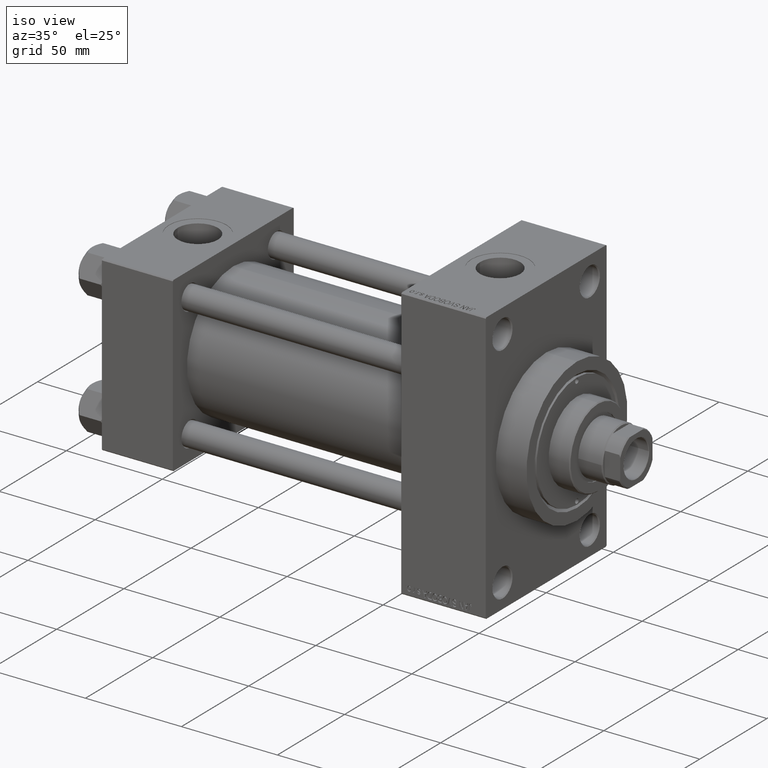
[diagram: clean part render]
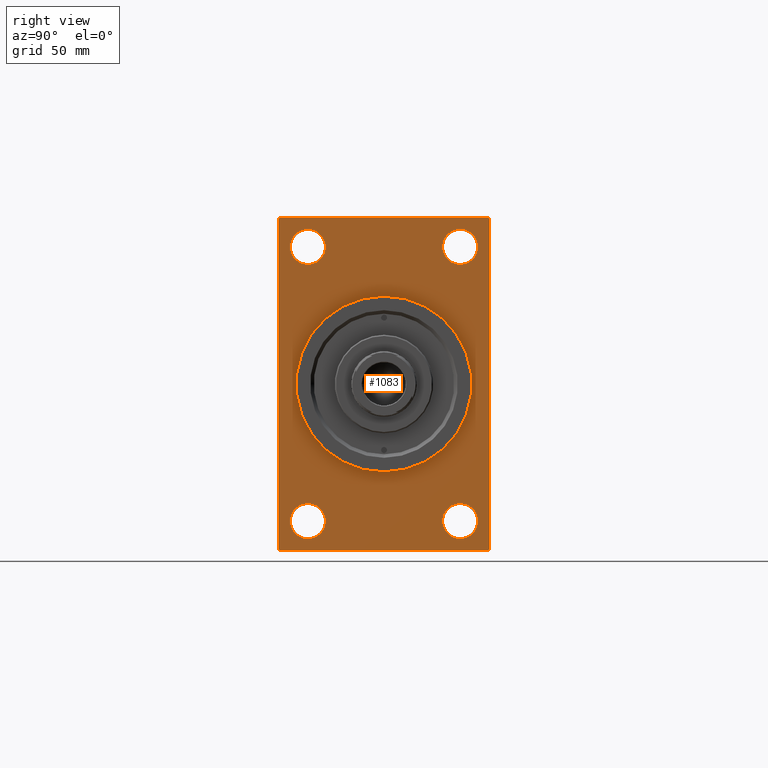
[diagram: tour spotlight — one face highlighted and labeled with its STEP entity id]
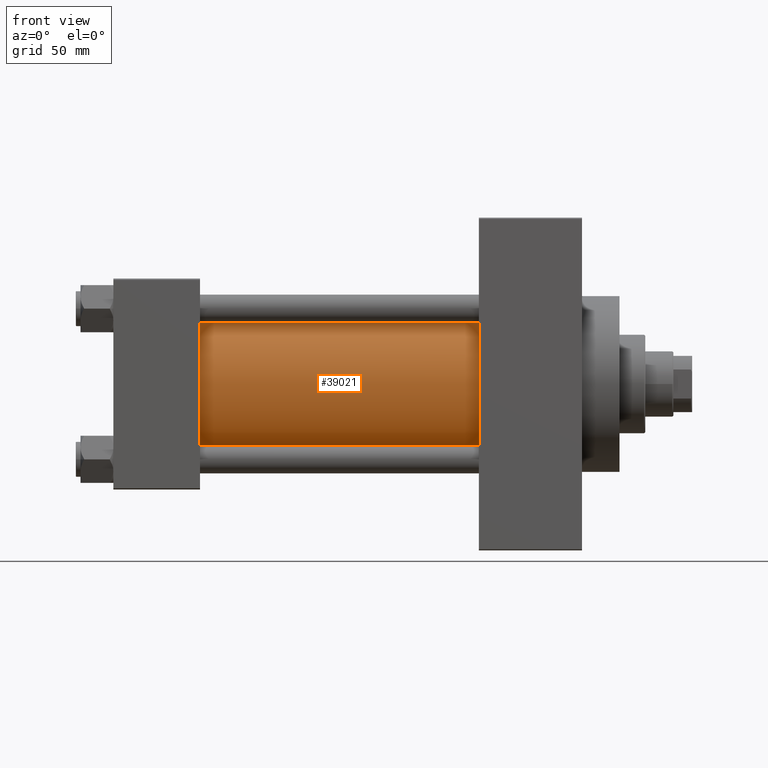
[diagram: tour spotlight — one face highlighted and labeled with its STEP entity id]
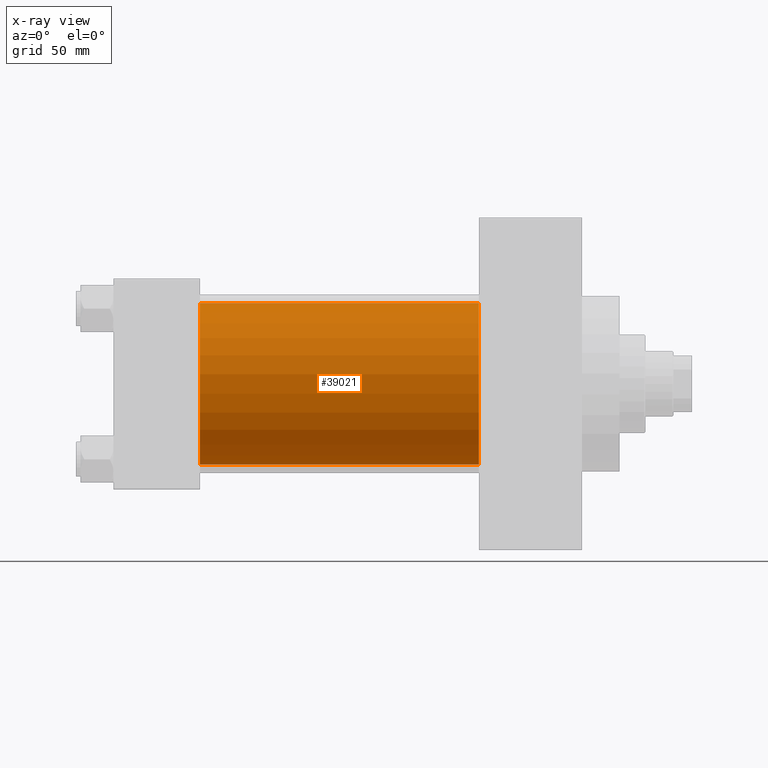
[diagram: x-ray of the same camera — body ghosted, this tour face saturated]
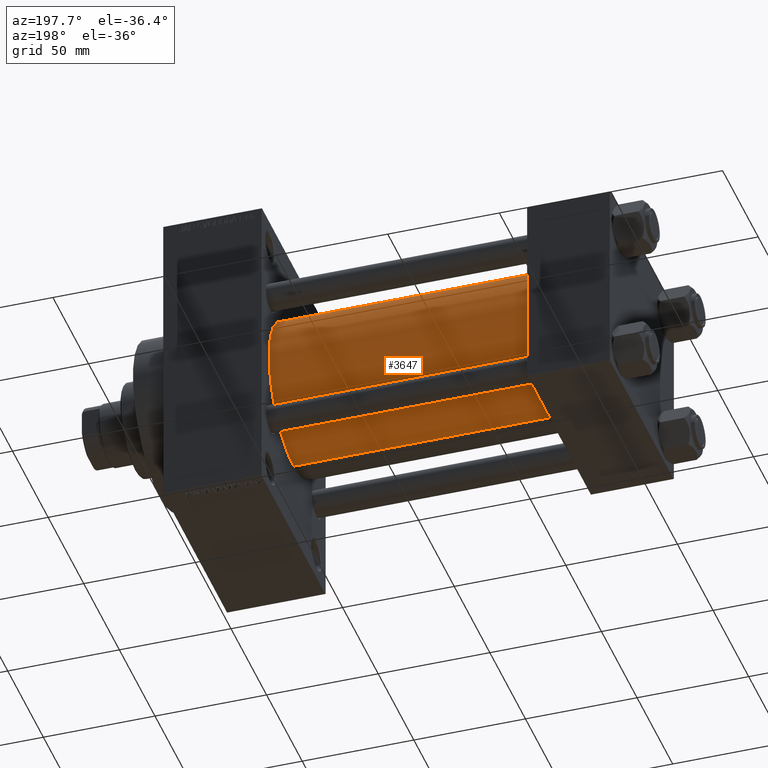
[diagram: tour spotlight — one face highlighted and labeled with its STEP entity id]
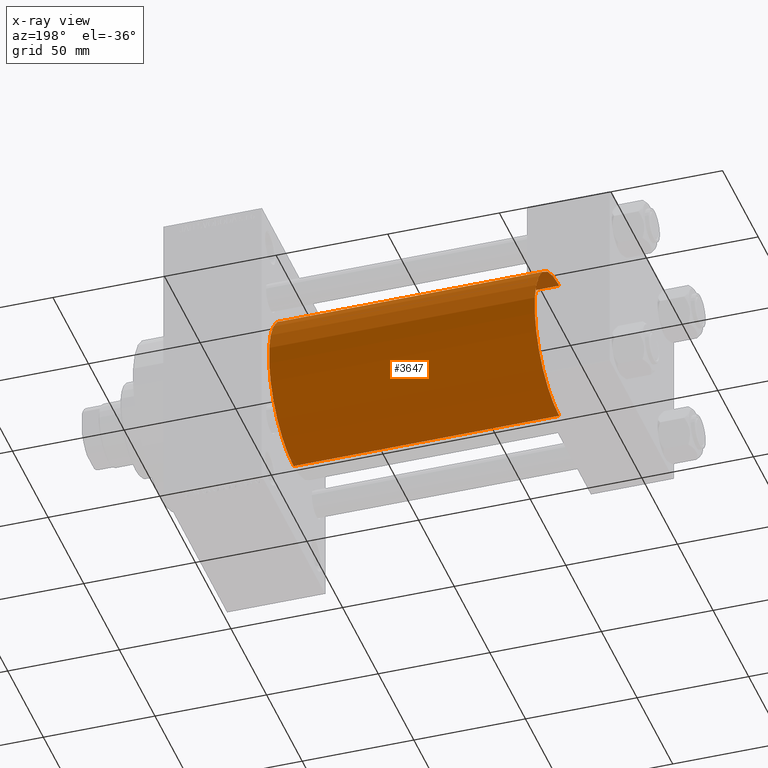
[diagram: x-ray of the same camera — body ghosted, this tour face saturated]
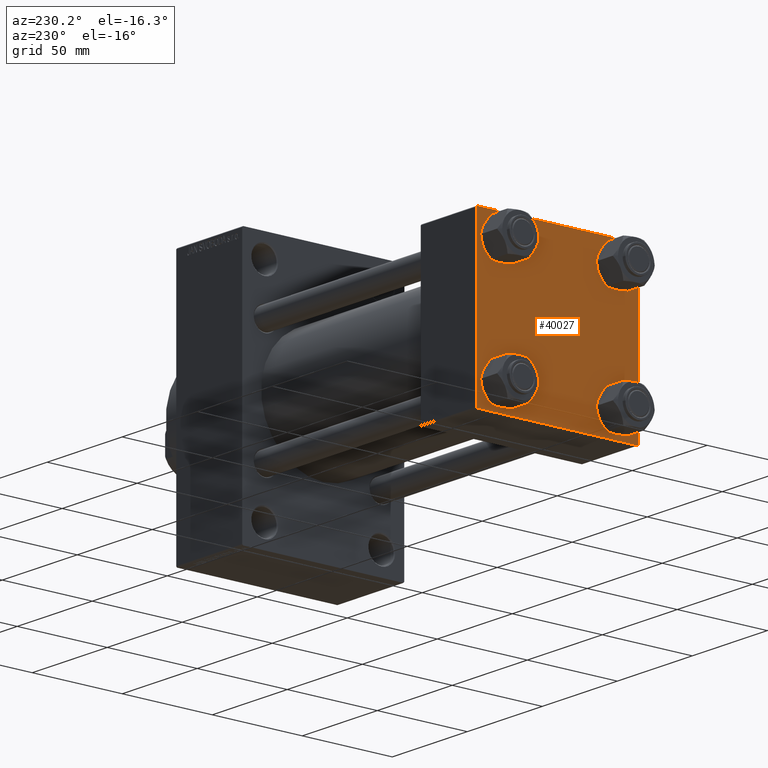
[diagram: tour spotlight — one face highlighted and labeled with its STEP entity id]
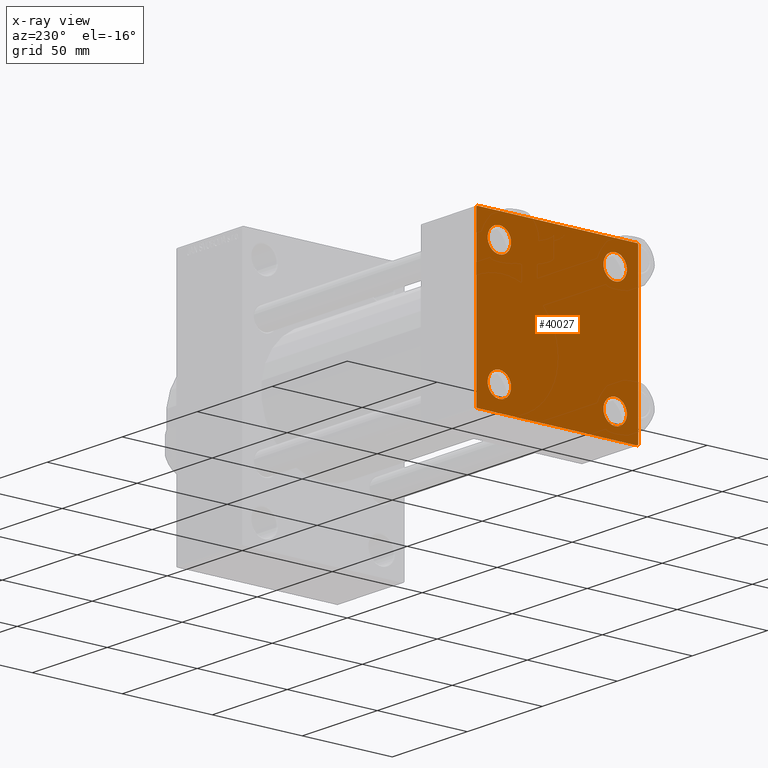
[diagram: x-ray of the same camera — body ghosted, this tour face saturated]
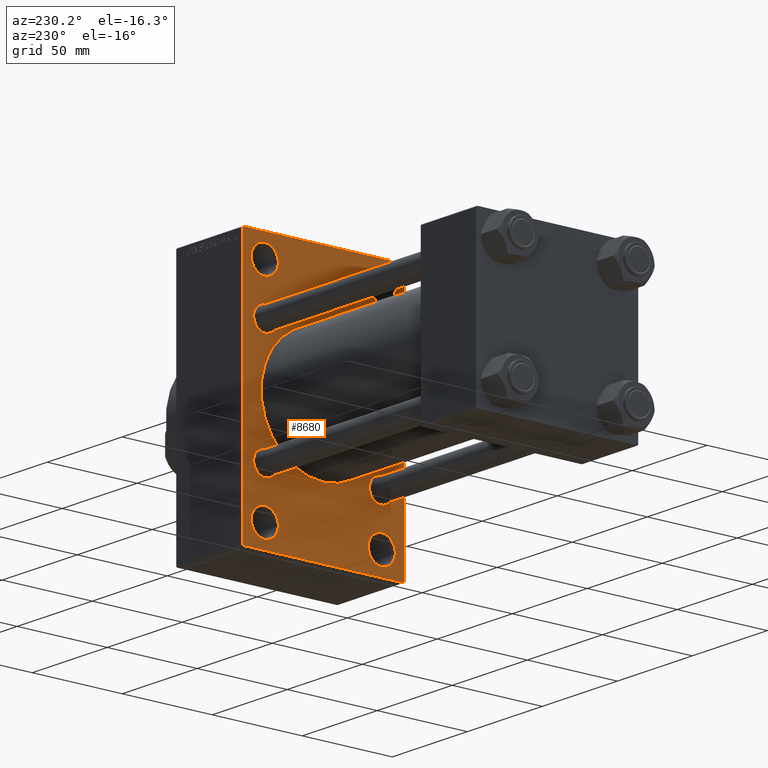
[diagram: tour spotlight — one face highlighted and labeled with its STEP entity id]
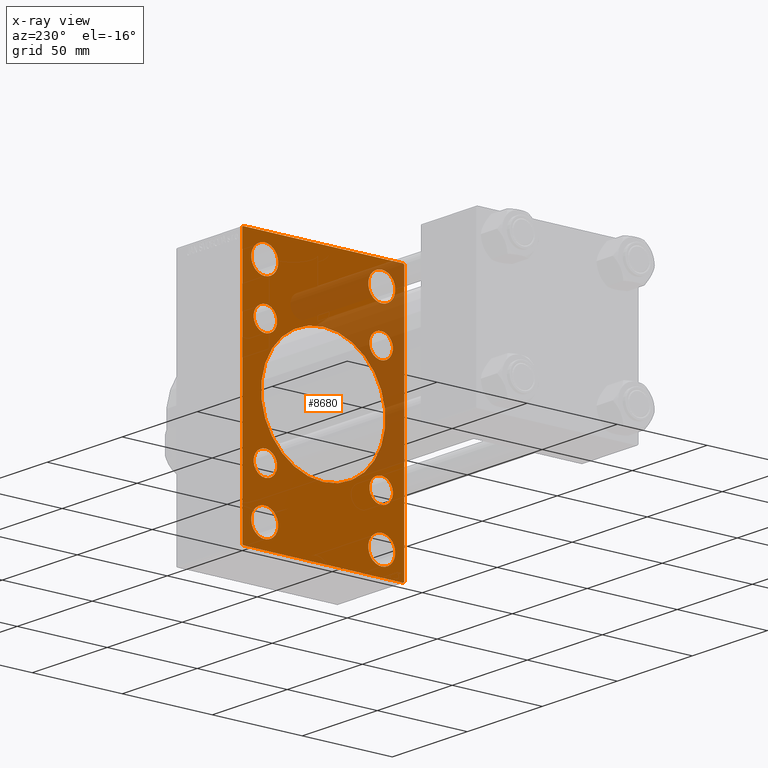
[diagram: x-ray of the same camera — body ghosted, this tour face saturated]
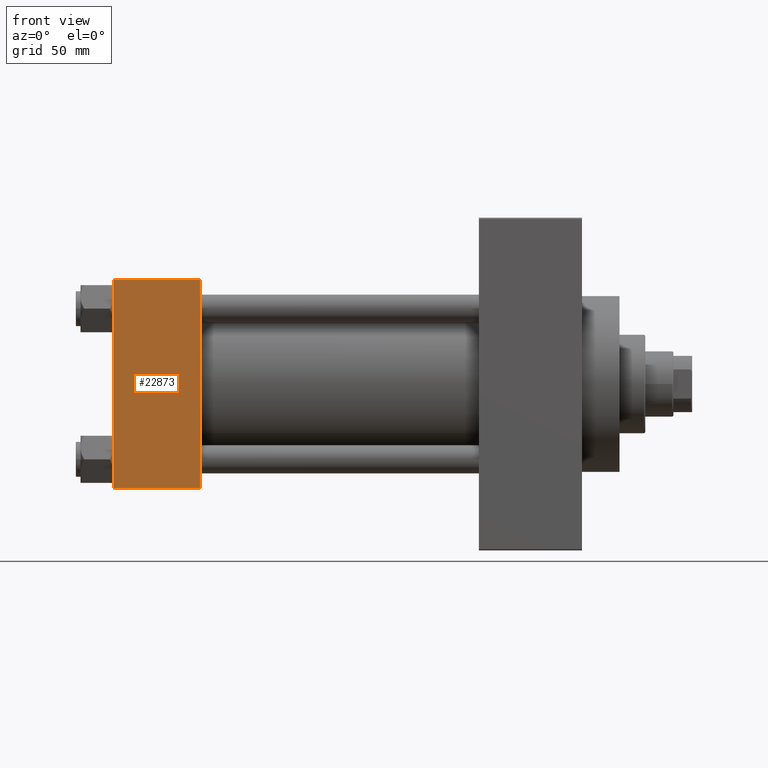
[diagram: tour spotlight — one face highlighted and labeled with its STEP entity id]
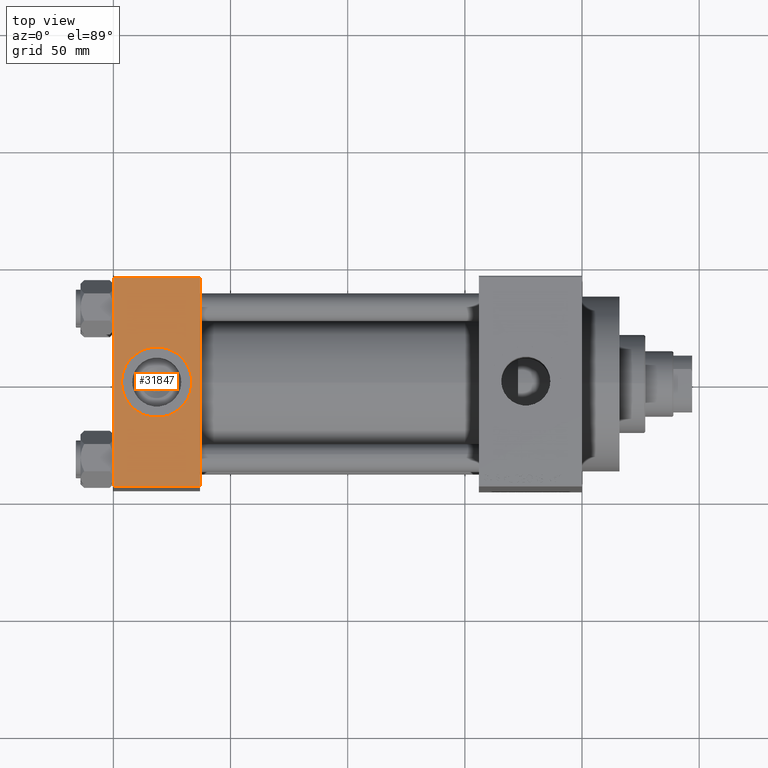
[diagram: tour spotlight — one face highlighted and labeled with its STEP entity id]
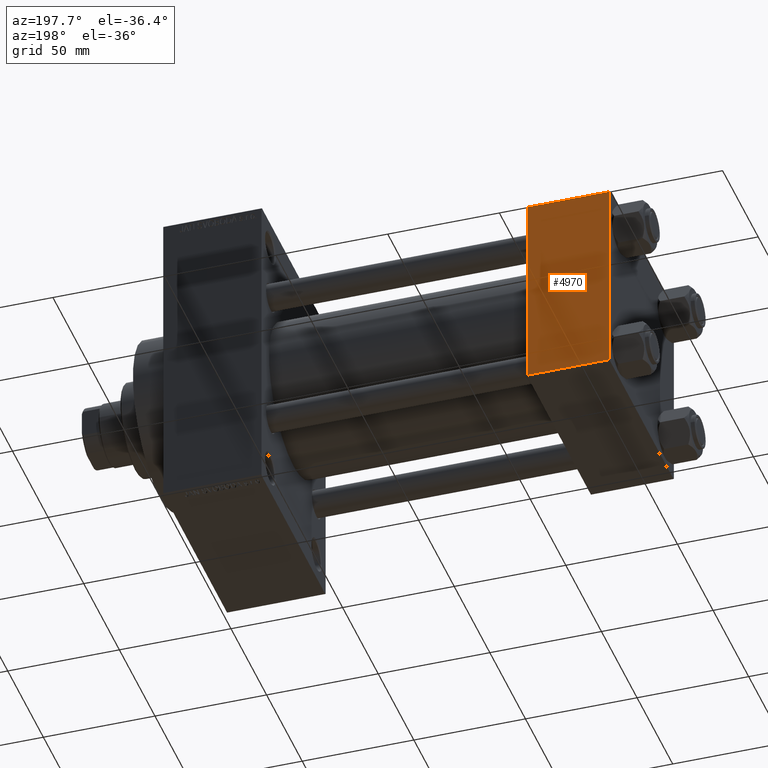
[diagram: tour spotlight — one face highlighted and labeled with its STEP entity id]
A machine part: a face-by-face anatomy tour. The part has 1111 B-rep faces; the first image is the clean iso view, then the 8 largest visible faces are spotlighted one at a time (largest first), each with its STEP entity span.

Face 1 — right view, entity #1083. In plain terms, the highlighted planar face has unit normal (-1, 0, 0).
Definition (entity closure, byte-faithful):
#222 = CIRCLE ( 'NONE', #46900, 7.500000000000076383 ) ;
#782 = ORIENTED_EDGE ( 'NONE', *, *, #43314, .F. ) ;
#796 = CARTESIAN_POINT ( 'NONE',  ( 200.0000000000000000, 0.000000000000000000, 0.000000000000000000 ) ) ;
#1083 = ADVANCED_FACE ( 'NONE', ( #18820, #15926, #22416, #23130, #22658, #37483 ), #37722, .F. ) ;
#2162 = DIRECTION ( 'NONE',  ( 0.000000000000000000, -4.886545002751570165E-17, -1.000000000000000000 ) ) ;
#2580 = VERTEX_POINT ( 'NONE', #30917 ) ;
#2664 = VERTEX_POINT ( 'NONE', #35007 ) ;
#2955 = AXIS2_PLACEMENT_3D ( 'NONE', #33647, #4164, #15449 ) ;
#3295 = EDGE_LOOP ( 'NONE', ( #18646, #29715 ) ) ;
#3457 = EDGE_LOOP ( 'NONE', ( #24332, #14615, #31571, #5312, #9964, #45939, #24490, #32886 ) ) ;
#3814 = CARTESIAN_POINT ( 'NONE',  ( 200.0000000000000000, 32.50000000000000711, 58.50000000000000711 ) ) ;
#4102 = EDGE_CURVE ( 'NONE', #30030, #6677, #7003, .T. ) ;
#4164 = DIRECTION ( 'NONE',  ( -1.000000000000000000, 0.000000000000000000, -0.000000000000000000 ) ) ;
#4209 = DIRECTION ( 'NONE',  ( -0.000000000000000000, -0.7071067811865230368, -0.7071067811865721087 ) ) ;
#4917 = LINE ( 'NONE', #37058, #31000 ) ;
#4928 = DIRECTION ( 'NONE',  ( 0.000000000000000000, 0.000000000000000000, 1.000000000000000000 ) ) ;
#4996 = DIRECTION ( 'NONE',  ( -1.000000000000000000, 0.000000000000000000, -0.000000000000000000 ) ) ;
#5259 = AXIS2_PLACEMENT_3D ( 'NONE', #8841, #4996, #42134 ) ;
#5312 = ORIENTED_EDGE ( 'NONE', *, *, #14363, .T. ) ;
#5559 = CIRCLE ( 'NONE', #25503, 7.500000000000076383 ) ;
#6051 = DIRECTION ( 'NONE',  ( 0.000000000000000000, 0.000000000000000000, 1.000000000000000000 ) ) ;
#6139 = AXIS2_PLACEMENT_3D ( 'NONE', #32686, #33141, #44169 ) ;
#6677 = VERTEX_POINT ( 'NONE', #35002 ) ;
#6855 = EDGE_CURVE ( 'NONE', #17649, #31733, #41413, .T. ) ;
#7003 = CIRCLE ( 'NONE', #34568, 7.500000000000089706 ) ;
#7363 = DIRECTION ( 'NONE',  ( 0.000000000000000000, 0.000000000000000000, 1.000000000000000000 ) ) ;
#8297 = CARTESIAN_POINT ( 'NONE',  ( 200.0000000000000000, 32.50000000000000711, -58.50000000000000000 ) ) ;
#8841 = CARTESIAN_POINT ( 'NONE',  ( 200.0000000000000000, -32.50000000000000000, -58.49999999999999289 ) ) ;
#9104 = CARTESIAN_POINT ( 'NONE',  ( 200.0000000000000000, -32.50000000000000000, -50.99999999999990052 ) ) ;
#9343 = VERTEX_POINT ( 'NONE', #14903 ) ;
#9964 = ORIENTED_EDGE ( 'NONE', *, *, #17358, .F. ) ;
#10415 = EDGE_CURVE ( 'NONE', #6677, #30030, #15542, .T. ) ;
#10515 = EDGE_CURVE ( 'NONE', #2664, #13522, #5559, .T. ) ;
#10941 = CARTESIAN_POINT ( 'NONE',  ( 200.0000000000000000, -44.99999999999997158, 70.49999999999990052 ) ) ;
#11034 = DIRECTION ( 'NONE',  ( 0.000000000000000000, -1.000000000000000000, -1.541976423090495633E-16 ) ) ;
#11428 = DIRECTION ( 'NONE',  ( -1.000000000000000000, 0.000000000000000000, -0.000000000000000000 ) ) ;
#12121 = DIRECTION ( 'NONE',  ( -0.000000000000000000, 0.7071067811865574537, 0.7071067811865376918 ) ) ;
#12395 = VECTOR ( 'NONE', #15827, 1000.000000000000000 ) ;
#12950 = CARTESIAN_POINT ( 'NONE',  ( 200.0000000000000000, 45.00000000000001421, -70.50000000000001421 ) ) ;
#13208 = LINE ( 'NONE', #27133, #43991 ) ;
#13471 = AXIS2_PLACEMENT_3D ( 'NONE', #44269, #11428, #7363 ) ;
#13522 = VERTEX_POINT ( 'NONE', #33189 ) ;
#13725 = DIRECTION ( 'NONE',  ( 0.000000000000000000, 0.000000000000000000, 1.000000000000000000 ) ) ;
#13816 = AXIS2_PLACEMENT_3D ( 'NONE', #14515, #14285, #17655 ) ;
#13918 = CARTESIAN_POINT ( 'NONE',  ( 200.0000000000000000, 45.00000000000001421, -70.99999999999998579 ) ) ;
#14285 = DIRECTION ( 'NONE',  ( 1.000000000000000000, 0.000000000000000000, 0.000000000000000000 ) ) ;
#14363 = EDGE_CURVE ( 'NONE', #44113, #23141, #4917, .T. ) ;
#14499 = DIRECTION ( 'NONE',  ( 0.000000000000000000, 0.000000000000000000, -1.000000000000000000 ) ) ;
#14515 = CARTESIAN_POINT ( 'NONE',  ( 200.0000000000000000, 0.000000000000000000, 0.000000000000000000 ) ) ;
#14615 = ORIENTED_EDGE ( 'NONE', *, *, #6855, .T. ) ;
#14769 = AXIS2_PLACEMENT_3D ( 'NONE', #46099, #38186, #6051 ) ;
#14903 = CARTESIAN_POINT ( 'NONE',  ( 200.0000000000000000, -32.50000000000000000, 50.99999999999993605 ) ) ;
#14989 = CARTESIAN_POINT ( 'NONE',  ( 200.0000000000000000, 0.000000000000000000, 0.000000000000000000 ) ) ;
#15004 = ORIENTED_EDGE ( 'NONE', *, *, #4102, .T. ) ;
#15074 = CARTESIAN_POINT ( 'NONE',  ( 200.0000000000000000, -44.49999999999988631, -71.00000000000000000 ) ) ;
#15110 = LINE ( 'NONE', #33549, #12395 ) ;
#15234 = CIRCLE ( 'NONE', #5259, 7.500000000000082601 ) ;
#15247 = LINE ( 'NONE', #10941, #27795 ) ;
#15449 = DIRECTION ( 'NONE',  ( 0.000000000000000000, 0.000000000000000000, 1.000000000000000000 ) ) ;
#15535 = DIRECTION ( 'NONE',  ( 0.000000000000000000, 0.000000000000000000, -1.000000000000000000 ) ) ;
#15542 = CIRCLE ( 'NONE', #14769, 7.500000000000089706 ) ;
#15751 = DIRECTION ( 'NONE',  ( -1.000000000000000000, 0.000000000000000000, -0.000000000000000000 ) ) ;
#15827 = DIRECTION ( 'NONE',  ( 0.000000000000000000, -1.000000000000000000, -1.541976423090495387E-16 ) ) ;
#15926 = FACE_BOUND ( 'NONE', #42735, .T. ) ;
#16549 = AXIS2_PLACEMENT_3D ( 'NONE', #14989, #29609, #14499 ) ;
#16636 = EDGE_LOOP ( 'NONE', ( #19008, #30214 ) ) ;
#17358 = EDGE_CURVE ( 'NONE', #25033, #23141, #13208, .T. ) ;
#17552 = CARTESIAN_POINT ( 'NONE',  ( 200.0000000000000000, 44.49999999999999289, 71.00000000000000000 ) ) ;
#17575 = DIRECTION ( 'NONE',  ( -1.000000000000000000, 0.000000000000000000, -0.000000000000000000 ) ) ;
#17649 = VERTEX_POINT ( 'NONE', #31609 ) ;
#17655 = DIRECTION ( 'NONE',  ( 0.000000000000000000, 0.000000000000000000, -1.000000000000000000 ) ) ;
#17927 = EDGE_CURVE ( 'NONE', #9343, #30066, #23455, .T. ) ;
#18283 = EDGE_CURVE ( 'NONE', #25033, #35859, #45813, .T. ) ;
#18541 = CARTESIAN_POINT ( 'NONE',  ( 200.0000000000000000, -32.50000000000000000, 66.00000000000008527 ) ) ;
#18646 = ORIENTED_EDGE ( 'NONE', *, *, #10515, .T. ) ;
#18820 = FACE_BOUND ( 'NONE', #16636, .T. ) ;
#18839 = ORIENTED_EDGE ( 'NONE', *, *, #26378, .F. ) ;
#19008 = ORIENTED_EDGE ( 'NONE', *, *, #17927, .T. ) ;
#19179 = CIRCLE ( 'NONE', #6139, 7.500000000000082601 ) ;
#19678 = CARTESIAN_POINT ( 'NONE',  ( 200.0000000000000000, -32.50000000000000000, 58.50000000000000711 ) ) ;
#19737 = CARTESIAN_POINT ( 'NONE',  ( 200.0000000000000000, 0.000000000000000000, 37.50000000000000711 ) ) ;
#20070 = EDGE_CURVE ( 'NONE', #2580, #37207, #15234, .T. ) ;
#20311 = EDGE_CURVE ( 'NONE', #13522, #2664, #23672, .T. ) ;
#22243 = EDGE_LOOP ( 'NONE', ( #18839, #782 ) ) ;
#22416 = FACE_BOUND ( 'NONE', #46182, .T. ) ;
#22488 = VERTEX_POINT ( 'NONE', #35097 ) ;
#22658 = FACE_BOUND ( 'NONE', #22243, .T. ) ;
#22708 = EDGE_CURVE ( 'NONE', #37207, #2580, #19179, .T. ) ;
#22750 = DIRECTION ( 'NONE',  ( 0.000000000000000000, 0.7071067811865769936, -0.7071067811865181518 ) ) ;
#23051 = AXIS2_PLACEMENT_3D ( 'NONE', #796, #34368, #26004 ) ;
#23130 = FACE_BOUND ( 'NONE', #3295, .T. ) ;
#23141 = VERTEX_POINT ( 'NONE', #12950 ) ;
#23455 = CIRCLE ( 'NONE', #13471, 7.500000000000076383 ) ;
#23672 = CIRCLE ( 'NONE', #2955, 7.500000000000076383 ) ;
#23782 = DIRECTION ( 'NONE',  ( 0.000000000000000000, -0.7071067811865672237, 0.7071067811865279218 ) ) ;
#24059 = CARTESIAN_POINT ( 'NONE',  ( 200.0000000000000000, -44.49999999999989342, 70.99999999999998579 ) ) ;
#24332 = ORIENTED_EDGE ( 'NONE', *, *, #26206, .T. ) ;
#24490 = ORIENTED_EDGE ( 'NONE', *, *, #29664, .T. ) ;
#25033 = VERTEX_POINT ( 'NONE', #34496 ) ;
#25503 = AXIS2_PLACEMENT_3D ( 'NONE', #3814, #17575, #13725 ) ;
#26004 = DIRECTION ( 'NONE',  ( -0.000000000000000000, 0.000000000000000000, 1.000000000000000000 ) ) ;
#26206 = EDGE_CURVE ( 'NONE', #22488, #17649, #26567, .T. ) ;
#26210 = ORIENTED_EDGE ( 'NONE', *, *, #20070, .T. ) ;
#26378 = EDGE_CURVE ( 'NONE', #38028, #37697, #40609, .T. ) ;
#26399 = CARTESIAN_POINT ( 'NONE',  ( 200.0000000000000000, -44.49999999999985789, -71.00000000000000000 ) ) ;
#26567 = LINE ( 'NONE', #44999, #34505 ) ;
#27133 = CARTESIAN_POINT ( 'NONE',  ( 200.0000000000000000, 45.00000000000002132, 71.00000000000000000 ) ) ;
#27676 = ORIENTED_EDGE ( 'NONE', *, *, #10415, .T. ) ;
#27795 = VECTOR ( 'NONE', #4209, 1000.000000000000000 ) ;
#29518 = EDGE_CURVE ( 'NONE', #44113, #31733, #40495, .T. ) ;
#29609 = DIRECTION ( 'NONE',  ( 1.000000000000000000, 0.000000000000000000, 0.000000000000000000 ) ) ;
#29664 = EDGE_CURVE ( 'NONE', #35859, #38211, #15110, .T. ) ;
#29715 = ORIENTED_EDGE ( 'NONE', *, *, #20311, .T. ) ;
#30030 = VERTEX_POINT ( 'NONE', #47277 ) ;
#30066 = VERTEX_POINT ( 'NONE', #18541 ) ;
#30214 = ORIENTED_EDGE ( 'NONE', *, *, #31851, .T. ) ;
#30735 = VECTOR ( 'NONE', #22750, 1000.000000000000000 ) ;
#30917 = CARTESIAN_POINT ( 'NONE',  ( 200.0000000000000000, -32.50000000000000000, -66.00000000000007105 ) ) ;
#31000 = VECTOR ( 'NONE', #12121, 999.9999999999998863 ) ;
#31456 = ORIENTED_EDGE ( 'NONE', *, *, #22708, .T. ) ;
#31571 = ORIENTED_EDGE ( 'NONE', *, *, #29518, .F. ) ;
#31609 = CARTESIAN_POINT ( 'NONE',  ( 200.0000000000000000, -44.99999999999997158, -70.49999999999995737 ) ) ;
#31733 = VERTEX_POINT ( 'NONE', #26399 ) ;
#31851 = EDGE_CURVE ( 'NONE', #30066, #9343, #222, .T. ) ;
#31860 = CIRCLE ( 'NONE', #16549, 37.50000000000000711 ) ;
#32500 = EDGE_CURVE ( 'NONE', #38211, #22488, #15247, .T. ) ;
#32607 = VECTOR ( 'NONE', #23782, 1000.000000000000000 ) ;
#32686 = CARTESIAN_POINT ( 'NONE',  ( 200.0000000000000000, -32.50000000000000000, -58.49999999999999289 ) ) ;
#32886 = ORIENTED_EDGE ( 'NONE', *, *, #32500, .T. ) ;
#33141 = DIRECTION ( 'NONE',  ( -1.000000000000000000, 0.000000000000000000, -0.000000000000000000 ) ) ;
#33189 = CARTESIAN_POINT ( 'NONE',  ( 200.0000000000000000, 32.50000000000000711, 66.00000000000008527 ) ) ;
#33549 = CARTESIAN_POINT ( 'NONE',  ( 200.0000000000000000, 45.00000000000002132, 71.00000000000000000 ) ) ;
#33647 = CARTESIAN_POINT ( 'NONE',  ( 200.0000000000000000, 32.50000000000000711, 58.50000000000000711 ) ) ;
#34059 = DIRECTION ( 'NONE',  ( 0.000000000000000000, 0.000000000000000000, 1.000000000000000000 ) ) ;
#34368 = DIRECTION ( 'NONE',  ( -1.000000000000000000, 0.000000000000000000, -0.000000000000000000 ) ) ;
#34496 = CARTESIAN_POINT ( 'NONE',  ( 200.0000000000000000, 45.00000000000002132, 70.50000000000000000 ) ) ;
#34505 = VECTOR ( 'NONE', #15535, 1000.000000000000000 ) ;
#34530 = DIRECTION ( 'NONE',  ( -1.000000000000000000, 0.000000000000000000, -0.000000000000000000 ) ) ;
#34568 = AXIS2_PLACEMENT_3D ( 'NONE', #8297, #15751, #4928 ) ;
#35002 = CARTESIAN_POINT ( 'NONE',  ( 200.0000000000000000, 32.50000000000000711, -66.00000000000008527 ) ) ;
#35007 = CARTESIAN_POINT ( 'NONE',  ( 200.0000000000000000, 32.50000000000000711, 50.99999999999993605 ) ) ;
#35097 = CARTESIAN_POINT ( 'NONE',  ( 200.0000000000000000, -44.99999999999997158, 70.49999999999990052 ) ) ;
#35859 = VERTEX_POINT ( 'NONE', #17552 ) ;
#37058 = CARTESIAN_POINT ( 'NONE',  ( 200.0000000000000000, 45.00000000000001421, -70.50000000000001421 ) ) ;
#37207 = VERTEX_POINT ( 'NONE', #9104 ) ;
#37483 = FACE_OUTER_BOUND ( 'NONE', #3457, .T. ) ;
#37697 = VERTEX_POINT ( 'NONE', #44482 ) ;
#37722 = PLANE ( 'NONE',  #23051 ) ;
#38028 = VERTEX_POINT ( 'NONE', #19737 ) ;
#38186 = DIRECTION ( 'NONE',  ( -1.000000000000000000, 0.000000000000000000, -0.000000000000000000 ) ) ;
#38211 = VERTEX_POINT ( 'NONE', #24059 ) ;
#38805 = CARTESIAN_POINT ( 'NONE',  ( 200.0000000000000000, 44.50000000000004263, -70.99999999999998579 ) ) ;
#39088 = CARTESIAN_POINT ( 'NONE',  ( 200.0000000000000000, 44.49999999999999289, 71.00000000000000000 ) ) ;
#40495 = LINE ( 'NONE', #13918, #41471 ) ;
#40609 = CIRCLE ( 'NONE', #13816, 37.50000000000000711 ) ;
#41413 = LINE ( 'NONE', #15074, #30735 ) ;
#41471 = VECTOR ( 'NONE', #11034, 1000.000000000000000 ) ;
#42134 = DIRECTION ( 'NONE',  ( 0.000000000000000000, 0.000000000000000000, 1.000000000000000000 ) ) ;
#42735 = EDGE_LOOP ( 'NONE', ( #26210, #31456 ) ) ;
#43314 = EDGE_CURVE ( 'NONE', #37697, #38028, #31860, .T. ) ;
#43991 = VECTOR ( 'NONE', #2162, 1000.000000000000000 ) ;
#44113 = VERTEX_POINT ( 'NONE', #38805 ) ;
#44169 = DIRECTION ( 'NONE',  ( 0.000000000000000000, 0.000000000000000000, 1.000000000000000000 ) ) ;
#44269 = CARTESIAN_POINT ( 'NONE',  ( 200.0000000000000000, -32.50000000000000000, 58.50000000000000711 ) ) ;
#44482 = CARTESIAN_POINT ( 'NONE',  ( 200.0000000000000000, 4.592425496802575156E-15, -37.50000000000000711 ) ) ;
#44999 = CARTESIAN_POINT ( 'NONE',  ( 200.0000000000000000, -44.99999999999997158, 70.99999999999998579 ) ) ;
#45813 = LINE ( 'NONE', #39088, #32607 ) ;
#45939 = ORIENTED_EDGE ( 'NONE', *, *, #18283, .T. ) ;
#46099 = CARTESIAN_POINT ( 'NONE',  ( 200.0000000000000000, 32.50000000000000711, -58.50000000000000000 ) ) ;
#46182 = EDGE_LOOP ( 'NONE', ( #27676, #15004 ) ) ;
#46900 = AXIS2_PLACEMENT_3D ( 'NONE', #19678, #34530, #34059 ) ;
#47277 = CARTESIAN_POINT ( 'NONE',  ( 200.0000000000000000, 32.50000000000000711, -50.99999999999990763 ) ) ;

Face 2 — front view, entity #39021. An x-ray twin of the same camera follows (body ghosted, this face saturated) — the face is partly hidden behind the body. In plain terms, the highlighted cylindrical surface (partial cylindrical patch) has radius 34.5 mm, axis along (-1, -0, -0).
Definition (entity closure, byte-faithful):
#20 = CARTESIAN_POINT ( 'NONE',  ( 156.0000000000000000, -2.602085213965210642E-15, 34.50000000000000000 ) ) ;
#269 = DIRECTION ( 'NONE',  ( 1.000000000000000000, -0.000000000000000000, 0.000000000000000000 ) ) ;
#2770 = ORIENTED_EDGE ( 'NONE', *, *, #42816, .T. ) ;
#3859 = DIRECTION ( 'NONE',  ( -1.000000000000000000, -0.000000000000000000, -0.000000000000000000 ) ) ;
#4744 = DIRECTION ( 'NONE',  ( 1.000000000000000000, 0.000000000000000000, 0.000000000000000000 ) ) ;
#5080 = VERTEX_POINT ( 'NONE', #18236 ) ;
#6811 = LINE ( 'NONE', #10654, #38995 ) ;
#10204 = VERTEX_POINT ( 'NONE', #39190 ) ;
#10654 = CARTESIAN_POINT ( 'NONE',  ( 156.0000000000000000, 1.622946243093158675E-15, -34.50000000000000000 ) ) ;
#11328 = ORIENTED_EDGE ( 'NONE', *, *, #38337, .T. ) ;
#11598 = DIRECTION ( 'NONE',  ( 0.000000000000000000, 0.000000000000000000, 1.000000000000000000 ) ) ;
#11957 = CARTESIAN_POINT ( 'NONE',  ( 156.0000000000000000, -2.602085213965210642E-15, 0.000000000000000000 ) ) ;
#12700 = AXIS2_PLACEMENT_3D ( 'NONE', #40789, #269, #22597 ) ;
#13710 = LINE ( 'NONE', #20, #45476 ) ;
#17981 = AXIS2_PLACEMENT_3D ( 'NONE', #11957, #4744, #38062 ) ;
#18236 = CARTESIAN_POINT ( 'NONE',  ( 156.0000000000000000, 1.622946243093158675E-15, -34.50000000000000000 ) ) ;
#19275 = CARTESIAN_POINT ( 'NONE',  ( 156.0000000000000000, -2.602085213965210642E-15, 0.000000000000000000 ) ) ;
#19515 = CIRCLE ( 'NONE', #17981, 34.50000000000000000 ) ;
#21413 = EDGE_LOOP ( 'NONE', ( #41037, #35505, #11328, #2770 ) ) ;
#22597 = DIRECTION ( 'NONE',  ( 0.000000000000000000, 0.000000000000000000, 1.000000000000000000 ) ) ;
#23357 = FACE_OUTER_BOUND ( 'NONE', #21413, .T. ) ;
#24606 = EDGE_CURVE ( 'NONE', #5080, #10204, #6811, .T. ) ;
#25737 = CARTESIAN_POINT ( 'NONE',  ( 156.0000000000000000, -2.602085213965210642E-15, 34.50000000000000000 ) ) ;
#33414 = DIRECTION ( 'NONE',  ( -1.000000000000000000, -0.000000000000000000, -0.000000000000000000 ) ) ;
#35505 = ORIENTED_EDGE ( 'NONE', *, *, #36004, .F. ) ;
#35689 = CIRCLE ( 'NONE', #12700, 34.50000000000000000 ) ;
#36004 = EDGE_CURVE ( 'NONE', #44528, #5080, #19515, .T. ) ;
#36079 = DIRECTION ( 'NONE',  ( -1.000000000000000000, -0.000000000000000000, -0.000000000000000000 ) ) ;
#37806 = AXIS2_PLACEMENT_3D ( 'NONE', #19275, #33414, #11598 ) ;
#38062 = DIRECTION ( 'NONE',  ( 0.000000000000000000, 0.000000000000000000, -1.000000000000000000 ) ) ;
#38337 = EDGE_CURVE ( 'NONE', #44528, #43859, #13710, .T. ) ;
#38995 = VECTOR ( 'NONE', #36079, 1000.000000000000000 ) ;
#39021 = ADVANCED_FACE ( 'NONE', ( #23357 ), #41787, .T. ) ;
#39190 = CARTESIAN_POINT ( 'NONE',  ( 37.00000000000000711, 1.622946243093158675E-15, -34.50000000000000000 ) ) ;
#40789 = CARTESIAN_POINT ( 'NONE',  ( 37.00000000000000711, -2.602085213965210642E-15, 0.000000000000000000 ) ) ;
#41037 = ORIENTED_EDGE ( 'NONE', *, *, #24606, .F. ) ;
#41787 = CYLINDRICAL_SURFACE ( 'NONE', #37806, 34.50000000000000000 ) ;
#42816 = EDGE_CURVE ( 'NONE', #43859, #10204, #35689, .T. ) ;
#43859 = VERTEX_POINT ( 'NONE', #47456 ) ;
#44528 = VERTEX_POINT ( 'NONE', #25737 ) ;
#45476 = VECTOR ( 'NONE', #3859, 1000.000000000000000 ) ;
#47456 = CARTESIAN_POINT ( 'NONE',  ( 37.00000000000000711, -2.602085213965210642E-15, 34.50000000000000000 ) ) ;

Face 3 — auxiliary view, entity #3647. An x-ray twin of the same camera follows (body ghosted, this face saturated) — the face is partly hidden behind the body. In plain terms, the highlighted cylindrical surface (partial cylindrical patch) has radius 34.5 mm, axis along (-1, -0, -0).
Definition (entity closure, byte-faithful):
#20 = CARTESIAN_POINT ( 'NONE',  ( 156.0000000000000000, -2.602085213965210642E-15, 34.50000000000000000 ) ) ;
#407 = ORIENTED_EDGE ( 'NONE', *, *, #24606, .T. ) ;
#1251 = DIRECTION ( 'NONE',  ( 1.000000000000000000, -0.000000000000000000, 0.000000000000000000 ) ) ;
#3097 = DIRECTION ( 'NONE',  ( 0.000000000000000000, 0.000000000000000000, -1.000000000000000000 ) ) ;
#3647 = ADVANCED_FACE ( 'NONE', ( #21584 ), #46726, .T. ) ;
#3859 = DIRECTION ( 'NONE',  ( -1.000000000000000000, -0.000000000000000000, -0.000000000000000000 ) ) ;
#5080 = VERTEX_POINT ( 'NONE', #18236 ) ;
#6278 = EDGE_CURVE ( 'NONE', #10204, #43859, #32221, .T. ) ;
#6811 = LINE ( 'NONE', #10654, #38995 ) ;
#7053 = ORIENTED_EDGE ( 'NONE', *, *, #38337, .F. ) ;
#7181 = CARTESIAN_POINT ( 'NONE',  ( 156.0000000000000000, -2.602085213965210642E-15, 0.000000000000000000 ) ) ;
#7241 = AXIS2_PLACEMENT_3D ( 'NONE', #7181, #43611, #3097 ) ;
#10204 = VERTEX_POINT ( 'NONE', #39190 ) ;
#10654 = CARTESIAN_POINT ( 'NONE',  ( 156.0000000000000000, 1.622946243093158675E-15, -34.50000000000000000 ) ) ;
#11085 = CIRCLE ( 'NONE', #7241, 34.50000000000000000 ) ;
#11557 = AXIS2_PLACEMENT_3D ( 'NONE', #15666, #1251, #15899 ) ;
#13710 = LINE ( 'NONE', #20, #45476 ) ;
#13899 = DIRECTION ( 'NONE',  ( 0.000000000000000000, 0.000000000000000000, 1.000000000000000000 ) ) ;
#15109 = ORIENTED_EDGE ( 'NONE', *, *, #39285, .F. ) ;
#15666 = CARTESIAN_POINT ( 'NONE',  ( 37.00000000000000711, -2.602085213965210642E-15, 0.000000000000000000 ) ) ;
#15899 = DIRECTION ( 'NONE',  ( 0.000000000000000000, 0.000000000000000000, 1.000000000000000000 ) ) ;
#18236 = CARTESIAN_POINT ( 'NONE',  ( 156.0000000000000000, 1.622946243093158675E-15, -34.50000000000000000 ) ) ;
#21221 = ORIENTED_EDGE ( 'NONE', *, *, #6278, .T. ) ;
#21584 = FACE_OUTER_BOUND ( 'NONE', #24444, .T. ) ;
#22052 = DIRECTION ( 'NONE',  ( -1.000000000000000000, -0.000000000000000000, -0.000000000000000000 ) ) ;
#24444 = EDGE_LOOP ( 'NONE', ( #15109, #407, #21221, #7053 ) ) ;
#24606 = EDGE_CURVE ( 'NONE', #5080, #10204, #6811, .T. ) ;
#25412 = CARTESIAN_POINT ( 'NONE',  ( 156.0000000000000000, -2.602085213965210642E-15, 0.000000000000000000 ) ) ;
#25737 = CARTESIAN_POINT ( 'NONE',  ( 156.0000000000000000, -2.602085213965210642E-15, 34.50000000000000000 ) ) ;
#31521 = AXIS2_PLACEMENT_3D ( 'NONE', #25412, #22052, #13899 ) ;
#32221 = CIRCLE ( 'NONE', #11557, 34.50000000000000000 ) ;
#36079 = DIRECTION ( 'NONE',  ( -1.000000000000000000, -0.000000000000000000, -0.000000000000000000 ) ) ;
#38337 = EDGE_CURVE ( 'NONE', #44528, #43859, #13710, .T. ) ;
#38995 = VECTOR ( 'NONE', #36079, 1000.000000000000000 ) ;
#39190 = CARTESIAN_POINT ( 'NONE',  ( 37.00000000000000711, 1.622946243093158675E-15, -34.50000000000000000 ) ) ;
#39285 = EDGE_CURVE ( 'NONE', #5080, #44528, #11085, .T. ) ;
#43611 = DIRECTION ( 'NONE',  ( 1.000000000000000000, 0.000000000000000000, 0.000000000000000000 ) ) ;
#43859 = VERTEX_POINT ( 'NONE', #47456 ) ;
#44528 = VERTEX_POINT ( 'NONE', #25737 ) ;
#45476 = VECTOR ( 'NONE', #3859, 1000.000000000000000 ) ;
#46726 = CYLINDRICAL_SURFACE ( 'NONE', #31521, 34.50000000000000000 ) ;
#47456 = CARTESIAN_POINT ( 'NONE',  ( 37.00000000000000711, -2.602085213965210642E-15, 34.50000000000000000 ) ) ;

Face 4 — auxiliary view, entity #40027. An x-ray twin of the same camera follows (body ghosted, this face saturated) — the face is partly hidden behind the body. In plain terms, the highlighted planar face has unit normal (-1, 0, 0).
Definition (entity closure, byte-faithful):
#450 = ORIENTED_EDGE ( 'NONE', *, *, #10786, .T. ) ;
#695 = VECTOR ( 'NONE', #35011, 1000.000000000000114 ) ;
#874 = ORIENTED_EDGE ( 'NONE', *, *, #43772, .T. ) ;
#1060 = DIRECTION ( 'NONE',  ( 0.000000000000000000, 0.000000000000000000, 1.000000000000000000 ) ) ;
#1116 = CARTESIAN_POINT ( 'NONE',  ( 0.000000000000000000, -32.14999999999997726, 38.65000000000003411 ) ) ;
#1393 = LINE ( 'NONE', #31140, #16478 ) ;
#1833 = AXIS2_PLACEMENT_3D ( 'NONE', #3379, #32635, #32861 ) ;
#2072 = ORIENTED_EDGE ( 'NONE', *, *, #10929, .T. ) ;
#2134 = VERTEX_POINT ( 'NONE', #38448 ) ;
#2200 = FACE_BOUND ( 'NONE', #35620, .T. ) ;
#2383 = CARTESIAN_POINT ( 'NONE',  ( 0.000000000000000000, -44.74999999999998579, -44.74999999999998579 ) ) ;
#2822 = CARTESIAN_POINT ( 'NONE',  ( 0.000000000000000000, 44.99999999999998579, 45.00000000000001421 ) ) ;
#2893 = VERTEX_POINT ( 'NONE', #31341 ) ;
#3230 = ORIENTED_EDGE ( 'NONE', *, *, #30051, .T. ) ;
#3379 = CARTESIAN_POINT ( 'NONE',  ( 0.000000000000000000, -32.14999999999997726, -32.15000000000001279 ) ) ;
#3476 = EDGE_LOOP ( 'NONE', ( #27644, #450 ) ) ;
#3534 = LINE ( 'NONE', #2822, #22953 ) ;
#4440 = DIRECTION ( 'NONE',  ( 1.000000000000000000, -0.000000000000000000, 0.000000000000000000 ) ) ;
#5219 = DIRECTION ( 'NONE',  ( 0.000000000000000000, 7.709882115452476934E-17, -1.000000000000000000 ) ) ;
#5323 = PLANE ( 'NONE',  #19510 ) ;
#5723 = DIRECTION ( 'NONE',  ( 0.000000000000000000, -1.000000000000000000, -1.541976423090495387E-16 ) ) ;
#5809 = FACE_BOUND ( 'NONE', #3476, .T. ) ;
#6346 = CARTESIAN_POINT ( 'NONE',  ( 0.000000000000000000, 32.14999999999999147, 32.15000000000000568 ) ) ;
#6431 = VERTEX_POINT ( 'NONE', #40054 ) ;
#6763 = ORIENTED_EDGE ( 'NONE', *, *, #34880, .T. ) ;
#7104 = CIRCLE ( 'NONE', #33920, 6.500000000000019540 ) ;
#7677 = VECTOR ( 'NONE', #38774, 1000.000000000000114 ) ;
#8473 = ORIENTED_EDGE ( 'NONE', *, *, #13877, .F. ) ;
#8728 = CIRCLE ( 'NONE', #25574, 6.499999999999977796 ) ;
#8922 = ORIENTED_EDGE ( 'NONE', *, *, #23210, .T. ) ;
#9390 = VERTEX_POINT ( 'NONE', #12246 ) ;
#9510 = VECTOR ( 'NONE', #5723, 1000.000000000000000 ) ;
#10240 = EDGE_CURVE ( 'NONE', #9390, #26702, #18593, .T. ) ;
#10424 = DIRECTION ( 'NONE',  ( 1.000000000000000000, -0.000000000000000000, 0.000000000000000000 ) ) ;
#10462 = DIRECTION ( 'NONE',  ( 1.000000000000000000, -0.000000000000000000, 0.000000000000000000 ) ) ;
#10786 = EDGE_CURVE ( 'NONE', #28361, #21365, #18621, .T. ) ;
#10929 = EDGE_CURVE ( 'NONE', #6431, #29522, #39269, .T. ) ;
#12246 = CARTESIAN_POINT ( 'NONE',  ( 0.000000000000000000, 32.14999999999999147, 25.65000000000002700 ) ) ;
#13149 = AXIS2_PLACEMENT_3D ( 'NONE', #33667, #41331, #1060 ) ;
#13877 = EDGE_CURVE ( 'NONE', #25315, #43567, #41452, .T. ) ;
#14221 = LINE ( 'NONE', #29784, #35348 ) ;
#14229 = VECTOR ( 'NONE', #16356, 1000.000000000000000 ) ;
#14501 = VERTEX_POINT ( 'NONE', #31058 ) ;
#15765 = DIRECTION ( 'NONE',  ( 1.000000000000000000, -0.000000000000000000, 0.000000000000000000 ) ) ;
#16200 = CIRCLE ( 'NONE', #13149, 6.499999999999977796 ) ;
#16356 = DIRECTION ( 'NONE',  ( 0.000000000000000000, -1.000000000000000000, -1.541976423090495633E-16 ) ) ;
#16478 = VECTOR ( 'NONE', #45747, 1000.000000000000114 ) ;
#16851 = FACE_OUTER_BOUND ( 'NONE', #24157, .T. ) ;
#18255 = EDGE_CURVE ( 'NONE', #20782, #25129, #19937, .T. ) ;
#18317 = EDGE_LOOP ( 'NONE', ( #39162, #39281 ) ) ;
#18593 = CIRCLE ( 'NONE', #30834, 6.499999999999977796 ) ;
#18621 = CIRCLE ( 'NONE', #45363, 6.500000000000019540 ) ;
#19353 = CARTESIAN_POINT ( 'NONE',  ( 0.000000000000000000, 32.14999999999999147, -32.15000000000000568 ) ) ;
#19510 = AXIS2_PLACEMENT_3D ( 'NONE', #31468, #24297, #34591 ) ;
#19600 = ORIENTED_EDGE ( 'NONE', *, *, #41995, .F. ) ;
#19937 = LINE ( 'NONE', #42208, #14229 ) ;
#20209 = FACE_BOUND ( 'NONE', #18317, .T. ) ;
#20782 = VERTEX_POINT ( 'NONE', #35960 ) ;
#20807 = CARTESIAN_POINT ( 'NONE',  ( 0.000000000000000000, -32.14999999999997726, -25.65000000000003411 ) ) ;
#21120 = AXIS2_PLACEMENT_3D ( 'NONE', #42688, #46053, #28306 ) ;
#21174 = EDGE_CURVE ( 'NONE', #2893, #2134, #3534, .T. ) ;
#21365 = VERTEX_POINT ( 'NONE', #1116 ) ;
#22006 = ORIENTED_EDGE ( 'NONE', *, *, #23482, .T. ) ;
#22627 = VECTOR ( 'NONE', #5219, 1000.000000000000000 ) ;
#22779 = ORIENTED_EDGE ( 'NONE', *, *, #21174, .T. ) ;
#22953 = VECTOR ( 'NONE', #46223, 1000.000000000000000 ) ;
#23210 = EDGE_CURVE ( 'NONE', #25129, #32625, #35236, .T. ) ;
#23482 = EDGE_CURVE ( 'NONE', #2134, #20782, #24185, .T. ) ;
#24157 = EDGE_LOOP ( 'NONE', ( #22779, #22006, #28868, #8922, #19600, #3230, #8473, #25745 ) ) ;
#24185 = LINE ( 'NONE', #31122, #7677 ) ;
#24297 = DIRECTION ( 'NONE',  ( -1.000000000000000000, 0.000000000000000000, -0.000000000000000000 ) ) ;
#25129 = VERTEX_POINT ( 'NONE', #46682 ) ;
#25131 = DIRECTION ( 'NONE',  ( 0.000000000000000000, 0.000000000000000000, 1.000000000000000000 ) ) ;
#25315 = VERTEX_POINT ( 'NONE', #32014 ) ;
#25574 = AXIS2_PLACEMENT_3D ( 'NONE', #43301, #10462, #33217 ) ;
#25745 = ORIENTED_EDGE ( 'NONE', *, *, #41303, .T. ) ;
#26702 = VERTEX_POINT ( 'NONE', #40107 ) ;
#27456 = CARTESIAN_POINT ( 'NONE',  ( 0.000000000000000000, -32.14999999999997726, 32.15000000000001279 ) ) ;
#27644 = ORIENTED_EDGE ( 'NONE', *, *, #32582, .T. ) ;
#28306 = DIRECTION ( 'NONE',  ( 0.000000000000000000, 0.000000000000000000, 1.000000000000000000 ) ) ;
#28360 = CARTESIAN_POINT ( 'NONE',  ( 0.000000000000000000, -44.49999999999995737, 45.00000000000000000 ) ) ;
#28361 = VERTEX_POINT ( 'NONE', #44697 ) ;
#28503 = EDGE_CURVE ( 'NONE', #46739, #40682, #16200, .T. ) ;
#28868 = ORIENTED_EDGE ( 'NONE', *, *, #18255, .T. ) ;
#28893 = DIRECTION ( 'NONE',  ( 0.000000000000000000, 0.000000000000000000, 1.000000000000000000 ) ) ;
#29522 = VERTEX_POINT ( 'NONE', #39790 ) ;
#29784 = CARTESIAN_POINT ( 'NONE',  ( -0.000000000000000000, -44.75000000000029843, 44.74999999999967315 ) ) ;
#29897 = DIRECTION ( 'NONE',  ( 0.000000000000000000, 0.000000000000000000, 1.000000000000000000 ) ) ;
#30051 = EDGE_CURVE ( 'NONE', #14501, #43567, #14221, .T. ) ;
#30356 = DIRECTION ( 'NONE',  ( 0.000000000000000000, 0.000000000000000000, 1.000000000000000000 ) ) ;
#30834 = AXIS2_PLACEMENT_3D ( 'NONE', #6346, #10424, #28893 ) ;
#31058 = CARTESIAN_POINT ( 'NONE',  ( 0.000000000000000000, -45.00000000000000711, 44.49999999999997158 ) ) ;
#31122 = CARTESIAN_POINT ( 'NONE',  ( 0.000000000000000000, 44.74999999999998579, -44.74999999999998579 ) ) ;
#31140 = CARTESIAN_POINT ( 'NONE',  ( 0.000000000000000000, 44.74999999999999289, 44.74999999999999289 ) ) ;
#31286 = CARTESIAN_POINT ( 'NONE',  ( 0.000000000000000000, -45.00000000000000000, -44.49999999999995737 ) ) ;
#31341 = CARTESIAN_POINT ( 'NONE',  ( 0.000000000000000000, 44.99999999999998579, 44.50000000000001421 ) ) ;
#31468 = CARTESIAN_POINT ( 'NONE',  ( 0.000000000000000000, 0.000000000000000000, 0.000000000000000000 ) ) ;
#32014 = CARTESIAN_POINT ( 'NONE',  ( 0.000000000000000000, 44.49999999999998579, 45.00000000000001421 ) ) ;
#32582 = EDGE_CURVE ( 'NONE', #21365, #28361, #7104, .T. ) ;
#32625 = VERTEX_POINT ( 'NONE', #31286 ) ;
#32635 = DIRECTION ( 'NONE',  ( 1.000000000000000000, -0.000000000000000000, 0.000000000000000000 ) ) ;
#32780 = CARTESIAN_POINT ( 'NONE',  ( 0.000000000000000000, -32.14999999999997726, 32.15000000000001279 ) ) ;
#32861 = DIRECTION ( 'NONE',  ( 0.000000000000000000, 0.000000000000000000, 1.000000000000000000 ) ) ;
#33217 = DIRECTION ( 'NONE',  ( 0.000000000000000000, 0.000000000000000000, 1.000000000000000000 ) ) ;
#33464 = CARTESIAN_POINT ( 'NONE',  ( 0.000000000000000000, -32.14999999999997726, -38.64999999999999147 ) ) ;
#33667 = CARTESIAN_POINT ( 'NONE',  ( 0.000000000000000000, -32.14999999999997726, -32.15000000000001279 ) ) ;
#33920 = AXIS2_PLACEMENT_3D ( 'NONE', #27456, #4440, #30356 ) ;
#34281 = EDGE_CURVE ( 'NONE', #26702, #9390, #8728, .T. ) ;
#34591 = DIRECTION ( 'NONE',  ( -0.000000000000000000, 0.000000000000000000, 1.000000000000000000 ) ) ;
#34880 = EDGE_CURVE ( 'NONE', #40682, #46739, #44717, .T. ) ;
#35011 = DIRECTION ( 'NONE',  ( 0.000000000000000000, -0.7071067811865474617, 0.7071067811865474617 ) ) ;
#35236 = LINE ( 'NONE', #2383, #695 ) ;
#35348 = VECTOR ( 'NONE', #40096, 1000.000000000000114 ) ;
#35620 = EDGE_LOOP ( 'NONE', ( #2072, #874 ) ) ;
#35960 = CARTESIAN_POINT ( 'NONE',  ( 0.000000000000000000, 44.49999999999998579, -44.99999999999998579 ) ) ;
#37548 = ORIENTED_EDGE ( 'NONE', *, *, #28503, .T. ) ;
#38448 = CARTESIAN_POINT ( 'NONE',  ( 0.000000000000000000, 44.99999999999998579, -44.49999999999995737 ) ) ;
#38774 = DIRECTION ( 'NONE',  ( -0.000000000000000000, -0.7071067811865474617, -0.7071067811865474617 ) ) ;
#39162 = ORIENTED_EDGE ( 'NONE', *, *, #34281, .T. ) ;
#39269 = CIRCLE ( 'NONE', #45401, 6.499999999999977796 ) ;
#39281 = ORIENTED_EDGE ( 'NONE', *, *, #10240, .T. ) ;
#39790 = CARTESIAN_POINT ( 'NONE',  ( 0.000000000000000000, 32.14999999999999147, -38.64999999999998437 ) ) ;
#40027 = ADVANCED_FACE ( 'NONE', ( #5809, #42481, #2200, #20209, #16851 ), #5323, .T. ) ;
#40054 = CARTESIAN_POINT ( 'NONE',  ( 0.000000000000000000, 32.14999999999999147, -25.65000000000002700 ) ) ;
#40096 = DIRECTION ( 'NONE',  ( -0.000000000000000000, 0.7071067811865425767, 0.7071067811865524577 ) ) ;
#40107 = CARTESIAN_POINT ( 'NONE',  ( 0.000000000000000000, 32.14999999999999147, 38.64999999999999147 ) ) ;
#40682 = VERTEX_POINT ( 'NONE', #20807 ) ;
#41303 = EDGE_CURVE ( 'NONE', #25315, #2893, #1393, .T. ) ;
#41331 = DIRECTION ( 'NONE',  ( 1.000000000000000000, -0.000000000000000000, 0.000000000000000000 ) ) ;
#41452 = LINE ( 'NONE', #41921, #9510 ) ;
#41770 = CIRCLE ( 'NONE', #21120, 6.499999999999977796 ) ;
#41921 = CARTESIAN_POINT ( 'NONE',  ( 0.000000000000000000, 44.99999999999998579, 45.00000000000001421 ) ) ;
#41995 = EDGE_CURVE ( 'NONE', #14501, #32625, #45027, .T. ) ;
#42208 = CARTESIAN_POINT ( 'NONE',  ( 0.000000000000000000, 44.99999999999998579, -44.99999999999998579 ) ) ;
#42481 = FACE_BOUND ( 'NONE', #43615, .T. ) ;
#42688 = CARTESIAN_POINT ( 'NONE',  ( 0.000000000000000000, 32.14999999999999147, -32.15000000000000568 ) ) ;
#43301 = CARTESIAN_POINT ( 'NONE',  ( 0.000000000000000000, 32.14999999999999147, 32.15000000000000568 ) ) ;
#43567 = VERTEX_POINT ( 'NONE', #28360 ) ;
#43615 = EDGE_LOOP ( 'NONE', ( #6763, #37548 ) ) ;
#43772 = EDGE_CURVE ( 'NONE', #29522, #6431, #41770, .T. ) ;
#44697 = CARTESIAN_POINT ( 'NONE',  ( 0.000000000000000000, -32.14999999999997726, 25.64999999999999147 ) ) ;
#44717 = CIRCLE ( 'NONE', #1833, 6.499999999999977796 ) ;
#45027 = LINE ( 'NONE', #45269, #22627 ) ;
#45269 = CARTESIAN_POINT ( 'NONE',  ( 0.000000000000000000, -45.00000000000000711, 45.00000000000000000 ) ) ;
#45363 = AXIS2_PLACEMENT_3D ( 'NONE', #32780, #47386, #25131 ) ;
#45401 = AXIS2_PLACEMENT_3D ( 'NONE', #19353, #15765, #29897 ) ;
#45747 = DIRECTION ( 'NONE',  ( 0.000000000000000000, 0.7071067811865474617, -0.7071067811865474617 ) ) ;
#46053 = DIRECTION ( 'NONE',  ( 1.000000000000000000, -0.000000000000000000, 0.000000000000000000 ) ) ;
#46223 = DIRECTION ( 'NONE',  ( 0.000000000000000000, 0.000000000000000000, -1.000000000000000000 ) ) ;
#46682 = CARTESIAN_POINT ( 'NONE',  ( 0.000000000000000000, -44.49999999999995737, -45.00000000000000000 ) ) ;
#46739 = VERTEX_POINT ( 'NONE', #33464 ) ;
#47386 = DIRECTION ( 'NONE',  ( 1.000000000000000000, -0.000000000000000000, 0.000000000000000000 ) ) ;

Face 5 — auxiliary view, entity #8680. An x-ray twin of the same camera follows (body ghosted, this face saturated) — the face is partly hidden behind the body. In plain terms, the highlighted planar face has unit normal (-1, 0, 0).
Definition (entity closure, byte-faithful):
#117 = VECTOR ( 'NONE', #41069, 1000.000000000000000 ) ;
#188 = DIRECTION ( 'NONE',  ( -0.000000000000000000, -0.7071067811865574537, -0.7071067811865376918 ) ) ;
#413 = VERTEX_POINT ( 'NONE', #7178 ) ;
#542 = LINE ( 'NONE', #11125, #117 ) ;
#863 = ORIENTED_EDGE ( 'NONE', *, *, #6435, .T. ) ;
#964 = FACE_OUTER_BOUND ( 'NONE', #27264, .T. ) ;
#1312 = EDGE_CURVE ( 'NONE', #10142, #33204, #32894, .T. ) ;
#1485 = CARTESIAN_POINT ( 'NONE',  ( 156.0000000000000000, -32.50000000000000000, -51.00000000000002842 ) ) ;
#1620 = CIRCLE ( 'NONE', #18487, 7.499999999999958256 ) ;
#2241 = VERTEX_POINT ( 'NONE', #4357 ) ;
#2505 = EDGE_CURVE ( 'NONE', #13981, #25432, #19661, .T. ) ;
#3097 = DIRECTION ( 'NONE',  ( 0.000000000000000000, 0.000000000000000000, -1.000000000000000000 ) ) ;
#3126 = VERTEX_POINT ( 'NONE', #35412 ) ;
#3359 = EDGE_CURVE ( 'NONE', #12390, #40154, #16197, .T. ) ;
#3477 = EDGE_CURVE ( 'NONE', #29205, #13981, #542, .T. ) ;
#3554 = CARTESIAN_POINT ( 'NONE',  ( 156.0000000000000000, -32.50000000000000000, -65.99999999999994316 ) ) ;
#4099 = CARTESIAN_POINT ( 'NONE',  ( 156.0000000000000000, -32.14999999999997726, 25.65000000000000213 ) ) ;
#4357 = CARTESIAN_POINT ( 'NONE',  ( 156.0000000000000000, 32.50000000000000711, 65.99999999999995737 ) ) ;
#4562 = CARTESIAN_POINT ( 'NONE',  ( 156.0000000000000000, 0.000000000000000000, 0.000000000000000000 ) ) ;
#4744 = DIRECTION ( 'NONE',  ( 1.000000000000000000, 0.000000000000000000, 0.000000000000000000 ) ) ;
#4971 = CARTESIAN_POINT ( 'NONE',  ( 156.0000000000000000, -32.50000000000000000, -58.49999999999999289 ) ) ;
#4987 = DIRECTION ( 'NONE',  ( 0.000000000000000000, 0.000000000000000000, 1.000000000000000000 ) ) ;
#5042 = FACE_BOUND ( 'NONE', #6613, .T. ) ;
#5080 = VERTEX_POINT ( 'NONE', #18236 ) ;
#5121 = DIRECTION ( 'NONE',  ( 0.000000000000000000, 0.000000000000000000, 1.000000000000000000 ) ) ;
#5268 = FACE_BOUND ( 'NONE', #36666, .T. ) ;
#5331 = CARTESIAN_POINT ( 'NONE',  ( 156.0000000000000000, 32.14999999999999147, 25.65000000000000213 ) ) ;
#5701 = AXIS2_PLACEMENT_3D ( 'NONE', #13667, #17513, #32115 ) ;
#5853 = ORIENTED_EDGE ( 'NONE', *, *, #22557, .F. ) ;
#6375 = VERTEX_POINT ( 'NONE', #34820 ) ;
#6435 = EDGE_CURVE ( 'NONE', #35398, #22966, #16950, .T. ) ;
#6613 = EDGE_LOOP ( 'NONE', ( #33555, #863 ) ) ;
#7033 = AXIS2_PLACEMENT_3D ( 'NONE', #22183, #43987, #44220 ) ;
#7046 = EDGE_CURVE ( 'NONE', #35733, #44705, #1620, .T. ) ;
#7178 = CARTESIAN_POINT ( 'NONE',  ( 156.0000000000000000, -32.50000000000000000, 65.99999999999995737 ) ) ;
#7181 = CARTESIAN_POINT ( 'NONE',  ( 156.0000000000000000, -2.602085213965210642E-15, 0.000000000000000000 ) ) ;
#7221 = LINE ( 'NONE', #26164, #14119 ) ;
#7241 = AXIS2_PLACEMENT_3D ( 'NONE', #7181, #43611, #3097 ) ;
#7618 = DIRECTION ( 'NONE',  ( 0.000000000000000000, 0.000000000000000000, 1.000000000000000000 ) ) ;
#7964 = LINE ( 'NONE', #11811, #43655 ) ;
#8019 = EDGE_CURVE ( 'NONE', #15403, #11105, #33081, .T. ) ;
#8343 = CARTESIAN_POINT ( 'NONE',  ( 156.0000000000000000, 44.50000000000004263, -70.99999999999998579 ) ) ;
#8680 = ADVANCED_FACE ( 'NONE', ( #33575, #23057, #5268, #45321, #15618, #11773, #12239, #5042, #45076, #964 ), #23529, .T. ) ;
#8797 = VECTOR ( 'NONE', #40419, 1000.000000000000000 ) ;
#9137 = CIRCLE ( 'NONE', #13079, 6.499999999999999112 ) ;
#9193 = DIRECTION ( 'NONE',  ( 1.000000000000000000, -0.000000000000000000, 0.000000000000000000 ) ) ;
#9290 = CARTESIAN_POINT ( 'NONE',  ( 156.0000000000000000, 32.50000000000000711, 51.00000000000005684 ) ) ;
#9469 = CIRCLE ( 'NONE', #27080, 7.499999999999951150 ) ;
#9518 = ORIENTED_EDGE ( 'NONE', *, *, #2505, .T. ) ;
#9567 = EDGE_CURVE ( 'NONE', #14053, #15781, #24678, .T. ) ;
#10142 = VERTEX_POINT ( 'NONE', #29125 ) ;
#10154 = ORIENTED_EDGE ( 'NONE', *, *, #41846, .T. ) ;
#10300 = CARTESIAN_POINT ( 'NONE',  ( 156.0000000000000000, -32.14999999999997726, 32.15000000000001279 ) ) ;
#10621 = ORIENTED_EDGE ( 'NONE', *, *, #1312, .T. ) ;
#10707 = CARTESIAN_POINT ( 'NONE',  ( 156.0000000000000000, -44.99999999999997158, -70.49999999999995737 ) ) ;
#10999 = LINE ( 'NONE', #25160, #14056 ) ;
#11085 = CIRCLE ( 'NONE', #7241, 34.50000000000000000 ) ;
#11088 = CARTESIAN_POINT ( 'NONE',  ( 156.0000000000000000, -57.74999999999809575, -57.75000000000289901 ) ) ;
#11105 = VERTEX_POINT ( 'NONE', #17141 ) ;
#11112 = ORIENTED_EDGE ( 'NONE', *, *, #36004, .T. ) ;
#11125 = CARTESIAN_POINT ( 'NONE',  ( 156.0000000000000000, 57.74999999999875655, 57.75000000000196820 ) ) ;
#11331 = DIRECTION ( 'NONE',  ( 0.000000000000000000, 0.000000000000000000, -1.000000000000000000 ) ) ;
#11663 = LINE ( 'NONE', #29419, #8797 ) ;
#11773 = FACE_BOUND ( 'NONE', #40917, .T. ) ;
#11811 = CARTESIAN_POINT ( 'NONE',  ( 156.0000000000000000, 45.00000000000001421, -70.99999999999998579 ) ) ;
#11909 = AXIS2_PLACEMENT_3D ( 'NONE', #19758, #9193, #5121 ) ;
#11957 = CARTESIAN_POINT ( 'NONE',  ( 156.0000000000000000, -2.602085213965210642E-15, 0.000000000000000000 ) ) ;
#12239 = FACE_BOUND ( 'NONE', #24797, .T. ) ;
#12285 = CIRCLE ( 'NONE', #39074, 7.499999999999951150 ) ;
#12390 = VERTEX_POINT ( 'NONE', #5331 ) ;
#12587 = CIRCLE ( 'NONE', #23316, 6.500000000000005329 ) ;
#12896 = DIRECTION ( 'NONE',  ( 1.000000000000000000, -0.000000000000000000, 0.000000000000000000 ) ) ;
#13077 = CARTESIAN_POINT ( 'NONE',  ( 156.0000000000000000, 32.50000000000000711, -65.99999999999994316 ) ) ;
#13079 = AXIS2_PLACEMENT_3D ( 'NONE', #33525, #33766, #7618 ) ;
#13269 = CARTESIAN_POINT ( 'NONE',  ( 156.0000000000000000, 44.49999999999999289, 71.00000000000000000 ) ) ;
#13341 = EDGE_CURVE ( 'NONE', #22966, #35398, #12587, .T. ) ;
#13667 = CARTESIAN_POINT ( 'NONE',  ( 156.0000000000000000, -32.14999999999997726, 32.15000000000001279 ) ) ;
#13981 = VERTEX_POINT ( 'NONE', #25814 ) ;
#14053 = VERTEX_POINT ( 'NONE', #33693 ) ;
#14056 = VECTOR ( 'NONE', #188, 999.9999999999998863 ) ;
#14119 = VECTOR ( 'NONE', #21870, 1000.000000000000000 ) ;
#14518 = EDGE_CURVE ( 'NONE', #29205, #41705, #7221, .T. ) ;
#14542 = DIRECTION ( 'NONE',  ( 0.000000000000000000, 0.000000000000000000, 1.000000000000000000 ) ) ;
#14913 = ORIENTED_EDGE ( 'NONE', *, *, #8019, .T. ) ;
#15229 = EDGE_CURVE ( 'NONE', #413, #3126, #32535, .T. ) ;
#15403 = VERTEX_POINT ( 'NONE', #13077 ) ;
#15412 = DIRECTION ( 'NONE',  ( 0.000000000000000000, -1.000000000000000000, -1.541976423090495633E-16 ) ) ;
#15618 = FACE_BOUND ( 'NONE', #39800, .T. ) ;
#15717 = AXIS2_PLACEMENT_3D ( 'NONE', #40188, #43073, #14542 ) ;
#15781 = VERTEX_POINT ( 'NONE', #4099 ) ;
#15968 = DIRECTION ( 'NONE',  ( 0.000000000000000000, 0.000000000000000000, 1.000000000000000000 ) ) ;
#15985 = CARTESIAN_POINT ( 'NONE',  ( 156.0000000000000000, -32.14999999999997726, -32.15000000000001279 ) ) ;
#16197 = CIRCLE ( 'NONE', #42970, 6.499999999999999112 ) ;
#16450 = DIRECTION ( 'NONE',  ( 1.000000000000000000, -0.000000000000000000, 0.000000000000000000 ) ) ;
#16515 = CARTESIAN_POINT ( 'NONE',  ( 156.0000000000000000, 32.50000000000000711, 58.50000000000000711 ) ) ;
#16950 = CIRCLE ( 'NONE', #43714, 6.500000000000005329 ) ;
#17141 = CARTESIAN_POINT ( 'NONE',  ( 156.0000000000000000, 32.50000000000000711, -51.00000000000004263 ) ) ;
#17176 = ORIENTED_EDGE ( 'NONE', *, *, #37090, .T. ) ;
#17351 = ORIENTED_EDGE ( 'NONE', *, *, #23330, .T. ) ;
#17513 = DIRECTION ( 'NONE',  ( 1.000000000000000000, -0.000000000000000000, 0.000000000000000000 ) ) ;
#17542 = CARTESIAN_POINT ( 'NONE',  ( 156.0000000000000000, -32.14999999999997726, -32.15000000000001279 ) ) ;
#17981 = AXIS2_PLACEMENT_3D ( 'NONE', #11957, #4744, #38062 ) ;
#18236 = CARTESIAN_POINT ( 'NONE',  ( 156.0000000000000000, 1.622946243093158675E-15, -34.50000000000000000 ) ) ;
#18456 = DIRECTION ( 'NONE',  ( 0.000000000000000000, 0.000000000000000000, 1.000000000000000000 ) ) ;
#18487 = AXIS2_PLACEMENT_3D ( 'NONE', #4971, #23687, #38287 ) ;
#18543 = ORIENTED_EDGE ( 'NONE', *, *, #14518, .F. ) ;
#19107 = AXIS2_PLACEMENT_3D ( 'NONE', #41501, #30013, #26423 ) ;
#19515 = CIRCLE ( 'NONE', #17981, 34.50000000000000000 ) ;
#19661 = LINE ( 'NONE', #44339, #29944 ) ;
#19753 = DIRECTION ( 'NONE',  ( 1.000000000000000000, -0.000000000000000000, 0.000000000000000000 ) ) ;
#19758 = CARTESIAN_POINT ( 'NONE',  ( 156.0000000000000000, -32.50000000000000000, 58.50000000000000711 ) ) ;
#20057 = DIRECTION ( 'NONE',  ( 1.000000000000000000, -0.000000000000000000, 0.000000000000000000 ) ) ;
#20063 = AXIS2_PLACEMENT_3D ( 'NONE', #23413, #16450, #15968 ) ;
#20328 = CIRCLE ( 'NONE', #11909, 7.499999999999951150 ) ;
#20449 = CARTESIAN_POINT ( 'NONE',  ( 156.0000000000000000, 45.00000000000001421, -70.50000000000001421 ) ) ;
#20584 = EDGE_CURVE ( 'NONE', #37315, #40091, #20650, .T. ) ;
#20650 = CIRCLE ( 'NONE', #19107, 6.500000000000005329 ) ;
#20961 = EDGE_LOOP ( 'NONE', ( #17176, #25859 ) ) ;
#21213 = DIRECTION ( 'NONE',  ( 1.000000000000000000, -0.000000000000000000, 0.000000000000000000 ) ) ;
#21863 = CARTESIAN_POINT ( 'NONE',  ( 156.0000000000000000, 32.50000000000000711, 58.50000000000000711 ) ) ;
#21870 = DIRECTION ( 'NONE',  ( 0.000000000000000000, -1.000000000000000000, -1.541976423090495387E-16 ) ) ;
#22183 = CARTESIAN_POINT ( 'NONE',  ( 156.0000000000000000, -32.50000000000000000, -58.49999999999999289 ) ) ;
#22221 = VECTOR ( 'NONE', #11331, 1000.000000000000000 ) ;
#22557 = EDGE_CURVE ( 'NONE', #6375, #33204, #46820, .T. ) ;
#22592 = EDGE_CURVE ( 'NONE', #32233, #10142, #7964, .T. ) ;
#22767 = EDGE_CURVE ( 'NONE', #11105, #15403, #12285, .T. ) ;
#22792 = DIRECTION ( 'NONE',  ( 0.000000000000000000, -4.886545002751570165E-17, -1.000000000000000000 ) ) ;
#22848 = DIRECTION ( 'NONE',  ( 0.000000000000000000, 0.000000000000000000, 1.000000000000000000 ) ) ;
#22966 = VERTEX_POINT ( 'NONE', #32409 ) ;
#23057 = FACE_BOUND ( 'NONE', #32367, .T. ) ;
#23316 = AXIS2_PLACEMENT_3D ( 'NONE', #15985, #20057, #23432 ) ;
#23330 = EDGE_CURVE ( 'NONE', #40154, #12390, #9137, .T. ) ;
#23413 = CARTESIAN_POINT ( 'NONE',  ( 156.0000000000000000, 32.50000000000000711, -58.50000000000000000 ) ) ;
#23432 = DIRECTION ( 'NONE',  ( 0.000000000000000000, 0.000000000000000000, 1.000000000000000000 ) ) ;
#23442 = ORIENTED_EDGE ( 'NONE', *, *, #20584, .T. ) ;
#23529 = PLANE ( 'NONE',  #25463 ) ;
#23622 = ORIENTED_EDGE ( 'NONE', *, *, #22767, .T. ) ;
#23687 = DIRECTION ( 'NONE',  ( 1.000000000000000000, -0.000000000000000000, 0.000000000000000000 ) ) ;
#24011 = CIRCLE ( 'NONE', #34698, 7.499999999999951150 ) ;
#24477 = ORIENTED_EDGE ( 'NONE', *, *, #3477, .T. ) ;
#24603 = EDGE_LOOP ( 'NONE', ( #11112, #27150 ) ) ;
#24651 = CIRCLE ( 'NONE', #7033, 7.499999999999958256 ) ;
#24678 = CIRCLE ( 'NONE', #42281, 6.500000000000005329 ) ;
#24741 = DIRECTION ( 'NONE',  ( 1.000000000000000000, -0.000000000000000000, 0.000000000000000000 ) ) ;
#24797 = EDGE_LOOP ( 'NONE', ( #38520, #23442 ) ) ;
#24940 = DIRECTION ( 'NONE',  ( 1.000000000000000000, -0.000000000000000000, 0.000000000000000000 ) ) ;
#25160 = CARTESIAN_POINT ( 'NONE',  ( 156.0000000000000000, 57.74999999999938893, -57.75000000000100187 ) ) ;
#25432 = VERTEX_POINT ( 'NONE', #20449 ) ;
#25463 = AXIS2_PLACEMENT_3D ( 'NONE', #4562, #44845, #26162 ) ;
#25725 = DIRECTION ( 'NONE',  ( 0.000000000000000000, -0.7071067811865769936, 0.7071067811865181518 ) ) ;
#25737 = CARTESIAN_POINT ( 'NONE',  ( 156.0000000000000000, -2.602085213965210642E-15, 34.50000000000000000 ) ) ;
#25814 = CARTESIAN_POINT ( 'NONE',  ( 156.0000000000000000, 45.00000000000002132, 70.50000000000000000 ) ) ;
#25859 = ORIENTED_EDGE ( 'NONE', *, *, #33030, .T. ) ;
#25913 = ORIENTED_EDGE ( 'NONE', *, *, #29786, .T. ) ;
#26083 = VECTOR ( 'NONE', #25725, 1000.000000000000000 ) ;
#26162 = DIRECTION ( 'NONE',  ( -0.000000000000000000, 0.000000000000000000, 1.000000000000000000 ) ) ;
#26164 = CARTESIAN_POINT ( 'NONE',  ( 156.0000000000000000, 45.00000000000002132, 71.00000000000000000 ) ) ;
#26423 = DIRECTION ( 'NONE',  ( 0.000000000000000000, 0.000000000000000000, 1.000000000000000000 ) ) ;
#27080 = AXIS2_PLACEMENT_3D ( 'NONE', #21863, #32862, #44125 ) ;
#27150 = ORIENTED_EDGE ( 'NONE', *, *, #39285, .T. ) ;
#27264 = EDGE_LOOP ( 'NONE', ( #42978, #10621, #5853, #27781, #18543, #24477, #9518, #47382 ) ) ;
#27781 = ORIENTED_EDGE ( 'NONE', *, *, #40820, .T. ) ;
#29125 = CARTESIAN_POINT ( 'NONE',  ( 156.0000000000000000, -44.49999999999985789, -71.00000000000000000 ) ) ;
#29205 = VERTEX_POINT ( 'NONE', #13269 ) ;
#29419 = CARTESIAN_POINT ( 'NONE',  ( 156.0000000000000000, -57.75000000000149925, 57.74999999999749178 ) ) ;
#29516 = DIRECTION ( 'NONE',  ( 0.000000000000000000, 0.000000000000000000, 1.000000000000000000 ) ) ;
#29786 = EDGE_CURVE ( 'NONE', #44705, #35733, #24651, .T. ) ;
#29944 = VECTOR ( 'NONE', #22792, 1000.000000000000000 ) ;
#30013 = DIRECTION ( 'NONE',  ( 1.000000000000000000, -0.000000000000000000, 0.000000000000000000 ) ) ;
#30108 = CARTESIAN_POINT ( 'NONE',  ( 156.0000000000000000, -32.14999999999997726, -38.65000000000001990 ) ) ;
#32115 = DIRECTION ( 'NONE',  ( 0.000000000000000000, 0.000000000000000000, 1.000000000000000000 ) ) ;
#32119 = VERTEX_POINT ( 'NONE', #9290 ) ;
#32233 = VERTEX_POINT ( 'NONE', #8343 ) ;
#32367 = EDGE_LOOP ( 'NONE', ( #38336, #25913 ) ) ;
#32409 = CARTESIAN_POINT ( 'NONE',  ( 156.0000000000000000, -32.14999999999997726, -25.65000000000000568 ) ) ;
#32454 = ORIENTED_EDGE ( 'NONE', *, *, #9567, .T. ) ;
#32535 = CIRCLE ( 'NONE', #15717, 7.499999999999951150 ) ;
#32862 = DIRECTION ( 'NONE',  ( 1.000000000000000000, -0.000000000000000000, 0.000000000000000000 ) ) ;
#32894 = LINE ( 'NONE', #11088, #26083 ) ;
#33030 = EDGE_CURVE ( 'NONE', #32119, #2241, #24011, .T. ) ;
#33081 = CIRCLE ( 'NONE', #20063, 7.499999999999951150 ) ;
#33204 = VERTEX_POINT ( 'NONE', #10707 ) ;
#33525 = CARTESIAN_POINT ( 'NONE',  ( 156.0000000000000000, 32.14999999999999147, 32.15000000000000568 ) ) ;
#33555 = ORIENTED_EDGE ( 'NONE', *, *, #13341, .T. ) ;
#33575 = FACE_BOUND ( 'NONE', #47339, .T. ) ;
#33652 = CARTESIAN_POINT ( 'NONE',  ( 156.0000000000000000, 32.14999999999999147, -32.15000000000000568 ) ) ;
#33693 = CARTESIAN_POINT ( 'NONE',  ( 156.0000000000000000, -32.14999999999997726, 38.65000000000002700 ) ) ;
#33766 = DIRECTION ( 'NONE',  ( 1.000000000000000000, -0.000000000000000000, 0.000000000000000000 ) ) ;
#34558 = ORIENTED_EDGE ( 'NONE', *, *, #3359, .T. ) ;
#34573 = DIRECTION ( 'NONE',  ( 1.000000000000000000, -0.000000000000000000, 0.000000000000000000 ) ) ;
#34698 = AXIS2_PLACEMENT_3D ( 'NONE', #16515, #12896, #4987 ) ;
#34820 = CARTESIAN_POINT ( 'NONE',  ( 156.0000000000000000, -44.99999999999997158, 70.49999999999990052 ) ) ;
#35004 = CARTESIAN_POINT ( 'NONE',  ( 156.0000000000000000, 32.14999999999999147, -38.65000000000001279 ) ) ;
#35357 = CARTESIAN_POINT ( 'NONE',  ( 156.0000000000000000, 32.14999999999999147, 32.15000000000000568 ) ) ;
#35398 = VERTEX_POINT ( 'NONE', #30108 ) ;
#35412 = CARTESIAN_POINT ( 'NONE',  ( 156.0000000000000000, -32.50000000000000000, 51.00000000000005684 ) ) ;
#35733 = VERTEX_POINT ( 'NONE', #1485 ) ;
#36004 = EDGE_CURVE ( 'NONE', #44528, #5080, #19515, .T. ) ;
#36461 = ORIENTED_EDGE ( 'NONE', *, *, #39366, .T. ) ;
#36666 = EDGE_LOOP ( 'NONE', ( #23622, #14913 ) ) ;
#37023 = CARTESIAN_POINT ( 'NONE',  ( 156.0000000000000000, -44.49999999999989342, 70.99999999999998579 ) ) ;
#37090 = EDGE_CURVE ( 'NONE', #2241, #32119, #9469, .T. ) ;
#37315 = VERTEX_POINT ( 'NONE', #35004 ) ;
#37398 = EDGE_CURVE ( 'NONE', #25432, #32233, #10999, .T. ) ;
#38062 = DIRECTION ( 'NONE',  ( 0.000000000000000000, 0.000000000000000000, -1.000000000000000000 ) ) ;
#38287 = DIRECTION ( 'NONE',  ( 0.000000000000000000, 0.000000000000000000, 1.000000000000000000 ) ) ;
#38336 = ORIENTED_EDGE ( 'NONE', *, *, #7046, .T. ) ;
#38520 = ORIENTED_EDGE ( 'NONE', *, *, #39576, .T. ) ;
#39074 = AXIS2_PLACEMENT_3D ( 'NONE', #41517, #34573, #22848 ) ;
#39285 = EDGE_CURVE ( 'NONE', #5080, #44528, #11085, .T. ) ;
#39366 = EDGE_CURVE ( 'NONE', #15781, #14053, #46288, .T. ) ;
#39576 = EDGE_CURVE ( 'NONE', #40091, #37315, #40926, .T. ) ;
#39800 = EDGE_LOOP ( 'NONE', ( #32454, #36461 ) ) ;
#40091 = VERTEX_POINT ( 'NONE', #45128 ) ;
#40154 = VERTEX_POINT ( 'NONE', #42003 ) ;
#40188 = CARTESIAN_POINT ( 'NONE',  ( 156.0000000000000000, -32.50000000000000000, 58.50000000000000711 ) ) ;
#40419 = DIRECTION ( 'NONE',  ( -0.000000000000000000, 0.7071067811865230368, 0.7071067811865721087 ) ) ;
#40820 = EDGE_CURVE ( 'NONE', #6375, #41705, #11663, .T. ) ;
#40917 = EDGE_LOOP ( 'NONE', ( #17351, #34558 ) ) ;
#40926 = CIRCLE ( 'NONE', #43997, 6.500000000000005329 ) ;
#40943 = ORIENTED_EDGE ( 'NONE', *, *, #15229, .T. ) ;
#41069 = DIRECTION ( 'NONE',  ( 0.000000000000000000, 0.7071067811865672237, -0.7071067811865279218 ) ) ;
#41501 = CARTESIAN_POINT ( 'NONE',  ( 156.0000000000000000, 32.14999999999999147, -32.15000000000000568 ) ) ;
#41517 = CARTESIAN_POINT ( 'NONE',  ( 156.0000000000000000, 32.50000000000000711, -58.50000000000000000 ) ) ;
#41705 = VERTEX_POINT ( 'NONE', #37023 ) ;
#41846 = EDGE_CURVE ( 'NONE', #3126, #413, #20328, .T. ) ;
#42003 = CARTESIAN_POINT ( 'NONE',  ( 156.0000000000000000, 32.14999999999999147, 38.65000000000001279 ) ) ;
#42281 = AXIS2_PLACEMENT_3D ( 'NONE', #10300, #24940, #18456 ) ;
#42970 = AXIS2_PLACEMENT_3D ( 'NONE', #35357, #21213, #46371 ) ;
#42978 = ORIENTED_EDGE ( 'NONE', *, *, #22592, .T. ) ;
#43073 = DIRECTION ( 'NONE',  ( 1.000000000000000000, -0.000000000000000000, 0.000000000000000000 ) ) ;
#43232 = CARTESIAN_POINT ( 'NONE',  ( 156.0000000000000000, -44.99999999999997158, 70.99999999999998579 ) ) ;
#43611 = DIRECTION ( 'NONE',  ( 1.000000000000000000, 0.000000000000000000, 0.000000000000000000 ) ) ;
#43655 = VECTOR ( 'NONE', #15412, 1000.000000000000000 ) ;
#43714 = AXIS2_PLACEMENT_3D ( 'NONE', #17542, #24741, #29516 ) ;
#43987 = DIRECTION ( 'NONE',  ( 1.000000000000000000, -0.000000000000000000, 0.000000000000000000 ) ) ;
#43997 = AXIS2_PLACEMENT_3D ( 'NONE', #33652, #19753, #44921 ) ;
#44125 = DIRECTION ( 'NONE',  ( 0.000000000000000000, 0.000000000000000000, 1.000000000000000000 ) ) ;
#44220 = DIRECTION ( 'NONE',  ( 0.000000000000000000, 0.000000000000000000, 1.000000000000000000 ) ) ;
#44339 = CARTESIAN_POINT ( 'NONE',  ( 156.0000000000000000, 45.00000000000002132, 71.00000000000000000 ) ) ;
#44528 = VERTEX_POINT ( 'NONE', #25737 ) ;
#44705 = VERTEX_POINT ( 'NONE', #3554 ) ;
#44845 = DIRECTION ( 'NONE',  ( -1.000000000000000000, 0.000000000000000000, -0.000000000000000000 ) ) ;
#44921 = DIRECTION ( 'NONE',  ( 0.000000000000000000, 0.000000000000000000, 1.000000000000000000 ) ) ;
#45076 = FACE_BOUND ( 'NONE', #24603, .T. ) ;
#45128 = CARTESIAN_POINT ( 'NONE',  ( 156.0000000000000000, 32.14999999999999147, -25.64999999999999858 ) ) ;
#45321 = FACE_BOUND ( 'NONE', #20961, .T. ) ;
#46288 = CIRCLE ( 'NONE', #5701, 6.500000000000005329 ) ;
#46371 = DIRECTION ( 'NONE',  ( 0.000000000000000000, 0.000000000000000000, 1.000000000000000000 ) ) ;
#46820 = LINE ( 'NONE', #43232, #22221 ) ;
#47339 = EDGE_LOOP ( 'NONE', ( #40943, #10154 ) ) ;
#47382 = ORIENTED_EDGE ( 'NONE', *, *, #37398, .T. ) ;

Face 6 — front view, entity #22873. In plain terms, the highlighted planar face has unit normal (0, 1, 0).
Definition (entity closure, byte-faithful):
#352 = VECTOR ( 'NONE', #40069, 1000.000000000000000 ) ;
#2673 = VECTOR ( 'NONE', #32786, 1000.000000000000000 ) ;
#3853 = PLANE ( 'NONE',  #11499 ) ;
#5219 = DIRECTION ( 'NONE',  ( 0.000000000000000000, 7.709882115452476934E-17, -1.000000000000000000 ) ) ;
#7365 = LINE ( 'NONE', #24661, #23735 ) ;
#8629 = ORIENTED_EDGE ( 'NONE', *, *, #41995, .T. ) ;
#10347 = DIRECTION ( 'NONE',  ( 0.000000000000000000, -7.709882115452478166E-17, 1.000000000000000000 ) ) ;
#10822 = CARTESIAN_POINT ( 'NONE',  ( 37.00000000000000000, -45.00000000000000711, 45.00000000000000000 ) ) ;
#11499 = AXIS2_PLACEMENT_3D ( 'NONE', #21634, #36240, #10347 ) ;
#14501 = VERTEX_POINT ( 'NONE', #31058 ) ;
#18592 = EDGE_CURVE ( 'NONE', #32625, #33129, #40214, .T. ) ;
#20806 = CARTESIAN_POINT ( 'NONE',  ( 37.00000000000000000, -45.00000000000000000, -44.49999999999995737 ) ) ;
#21634 = CARTESIAN_POINT ( 'NONE',  ( 37.00000000000000000, -45.00000000000000711, 45.00000000000000000 ) ) ;
#22627 = VECTOR ( 'NONE', #5219, 1000.000000000000000 ) ;
#22873 = ADVANCED_FACE ( 'NONE', ( #43895 ), #3853, .F. ) ;
#23735 = VECTOR ( 'NONE', #39505, 1000.000000000000000 ) ;
#24661 = CARTESIAN_POINT ( 'NONE',  ( 37.00000000000000000, -45.00000000000000711, 44.49999999999997158 ) ) ;
#24905 = CARTESIAN_POINT ( 'NONE',  ( 37.00000000000000000, -45.00000000000000000, -44.49999999999998579 ) ) ;
#25078 = EDGE_CURVE ( 'NONE', #47235, #14501, #7365, .T. ) ;
#27871 = CARTESIAN_POINT ( 'NONE',  ( 37.00000000000000000, -45.00000000000000711, 44.49999999999997158 ) ) ;
#31058 = CARTESIAN_POINT ( 'NONE',  ( 0.000000000000000000, -45.00000000000000711, 44.49999999999997158 ) ) ;
#31286 = CARTESIAN_POINT ( 'NONE',  ( 0.000000000000000000, -45.00000000000000000, -44.49999999999995737 ) ) ;
#32625 = VERTEX_POINT ( 'NONE', #31286 ) ;
#32786 = DIRECTION ( 'NONE',  ( 1.000000000000000000, 0.000000000000000000, 0.000000000000000000 ) ) ;
#33129 = VERTEX_POINT ( 'NONE', #20806 ) ;
#35051 = ORIENTED_EDGE ( 'NONE', *, *, #25078, .T. ) ;
#36064 = EDGE_CURVE ( 'NONE', #47235, #33129, #45017, .T. ) ;
#36240 = DIRECTION ( 'NONE',  ( -0.000000000000000000, 1.000000000000000000, 7.709882115452478166E-17 ) ) ;
#37428 = ORIENTED_EDGE ( 'NONE', *, *, #36064, .F. ) ;
#39505 = DIRECTION ( 'NONE',  ( -1.000000000000000000, 0.000000000000000000, 0.000000000000000000 ) ) ;
#40069 = DIRECTION ( 'NONE',  ( 0.000000000000000000, 7.709882115452476934E-17, -1.000000000000000000 ) ) ;
#40214 = LINE ( 'NONE', #24905, #2673 ) ;
#41995 = EDGE_CURVE ( 'NONE', #14501, #32625, #45027, .T. ) ;
#43895 = FACE_OUTER_BOUND ( 'NONE', #47112, .T. ) ;
#45017 = LINE ( 'NONE', #10822, #352 ) ;
#45027 = LINE ( 'NONE', #45269, #22627 ) ;
#45269 = CARTESIAN_POINT ( 'NONE',  ( 0.000000000000000000, -45.00000000000000711, 45.00000000000000000 ) ) ;
#45704 = ORIENTED_EDGE ( 'NONE', *, *, #18592, .T. ) ;
#47112 = EDGE_LOOP ( 'NONE', ( #8629, #45704, #37428, #35051 ) ) ;
#47235 = VERTEX_POINT ( 'NONE', #27871 ) ;

Face 7 — top view, entity #31847. In plain terms, the highlighted planar face has unit normal (0, 0, -1).
Definition (entity closure, byte-faithful):
#1427 = CARTESIAN_POINT ( 'NONE',  ( 33.50000000000000000, -8.673617379884038628E-15, 45.00000000000000711 ) ) ;
#2007 = VERTEX_POINT ( 'NONE', #26498 ) ;
#3069 = EDGE_LOOP ( 'NONE', ( #32016, #15731, #13678, #13873 ) ) ;
#5036 = FACE_BOUND ( 'NONE', #32897, .T. ) ;
#5205 = DIRECTION ( 'NONE',  ( 0.000000000000000000, -1.000000000000000000, -1.541976423090495387E-16 ) ) ;
#5723 = DIRECTION ( 'NONE',  ( 0.000000000000000000, -1.000000000000000000, -1.541976423090495387E-16 ) ) ;
#7305 = AXIS2_PLACEMENT_3D ( 'NONE', #40849, #33903, #11853 ) ;
#8400 = FACE_OUTER_BOUND ( 'NONE', #3069, .T. ) ;
#9510 = VECTOR ( 'NONE', #5723, 1000.000000000000000 ) ;
#11853 = DIRECTION ( 'NONE',  ( 1.000000000000000000, 0.000000000000000000, 0.000000000000000000 ) ) ;
#12233 = PLANE ( 'NONE',  #43068 ) ;
#13678 = ORIENTED_EDGE ( 'NONE', *, *, #32097, .F. ) ;
#13711 = DIRECTION ( 'NONE',  ( -1.000000000000000000, 0.000000000000000000, 0.000000000000000000 ) ) ;
#13873 = ORIENTED_EDGE ( 'NONE', *, *, #32853, .T. ) ;
#13877 = EDGE_CURVE ( 'NONE', #25315, #43567, #41452, .T. ) ;
#14988 = CIRCLE ( 'NONE', #7305, 15.00000000000000355 ) ;
#15553 = LINE ( 'NONE', #41651, #33111 ) ;
#15731 = ORIENTED_EDGE ( 'NONE', *, *, #24079, .T. ) ;
#16279 = CARTESIAN_POINT ( 'NONE',  ( 3.499999999999997780, -6.836647181163008250E-15, 45.00000000000000711 ) ) ;
#16557 = EDGE_CURVE ( 'NONE', #33024, #31792, #14988, .T. ) ;
#19420 = VECTOR ( 'NONE', #13711, 1000.000000000000000 ) ;
#19443 = DIRECTION ( 'NONE',  ( 0.000000000000000000, 1.541976423090495633E-16, -1.000000000000000000 ) ) ;
#20040 = DIRECTION ( 'NONE',  ( 1.000000000000000000, 0.000000000000000000, 0.000000000000000000 ) ) ;
#22563 = CIRCLE ( 'NONE', #30221, 15.00000000000000355 ) ;
#23282 = CARTESIAN_POINT ( 'NONE',  ( 37.00000000000000000, 44.99999999999998579, 45.00000000000001421 ) ) ;
#23997 = DIRECTION ( 'NONE',  ( 0.000000000000000000, 1.000000000000000000, 1.541976423090495633E-16 ) ) ;
#24010 = LINE ( 'NONE', #42192, #33749 ) ;
#24079 = EDGE_CURVE ( 'NONE', #43567, #28726, #24010, .T. ) ;
#24299 = LINE ( 'NONE', #46544, #19420 ) ;
#25315 = VERTEX_POINT ( 'NONE', #32014 ) ;
#25889 = ORIENTED_EDGE ( 'NONE', *, *, #16557, .F. ) ;
#25972 = ORIENTED_EDGE ( 'NONE', *, *, #36405, .F. ) ;
#26498 = CARTESIAN_POINT ( 'NONE',  ( 37.00000000000000000, 44.49999999999998579, 45.00000000000001421 ) ) ;
#27012 = CARTESIAN_POINT ( 'NONE',  ( 37.00000000000000000, -44.49999999999995737, 45.00000000000000000 ) ) ;
#28360 = CARTESIAN_POINT ( 'NONE',  ( 0.000000000000000000, -44.49999999999995737, 45.00000000000000000 ) ) ;
#28726 = VERTEX_POINT ( 'NONE', #27012 ) ;
#30221 = AXIS2_PLACEMENT_3D ( 'NONE', #31759, #30827, #20040 ) ;
#30827 = DIRECTION ( 'NONE',  ( 0.000000000000000000, 0.000000000000000000, 1.000000000000000000 ) ) ;
#31759 = CARTESIAN_POINT ( 'NONE',  ( 18.50000000000000000, -8.673617379884038628E-15, 45.00000000000000711 ) ) ;
#31792 = VERTEX_POINT ( 'NONE', #1427 ) ;
#31847 = ADVANCED_FACE ( 'NONE', ( #5036, #8400 ), #12233, .F. ) ;
#32014 = CARTESIAN_POINT ( 'NONE',  ( 0.000000000000000000, 44.49999999999998579, 45.00000000000001421 ) ) ;
#32016 = ORIENTED_EDGE ( 'NONE', *, *, #13877, .T. ) ;
#32097 = EDGE_CURVE ( 'NONE', #2007, #28726, #15553, .T. ) ;
#32853 = EDGE_CURVE ( 'NONE', #2007, #25315, #24299, .T. ) ;
#32897 = EDGE_LOOP ( 'NONE', ( #25972, #25889 ) ) ;
#33024 = VERTEX_POINT ( 'NONE', #16279 ) ;
#33111 = VECTOR ( 'NONE', #5205, 1000.000000000000000 ) ;
#33749 = VECTOR ( 'NONE', #46265, 1000.000000000000000 ) ;
#33903 = DIRECTION ( 'NONE',  ( 0.000000000000000000, 0.000000000000000000, 1.000000000000000000 ) ) ;
#36405 = EDGE_CURVE ( 'NONE', #31792, #33024, #22563, .T. ) ;
#40849 = CARTESIAN_POINT ( 'NONE',  ( 18.50000000000000000, -8.673617379884038628E-15, 45.00000000000000711 ) ) ;
#41452 = LINE ( 'NONE', #41921, #9510 ) ;
#41651 = CARTESIAN_POINT ( 'NONE',  ( 37.00000000000000000, 44.99999999999998579, 45.00000000000001421 ) ) ;
#41921 = CARTESIAN_POINT ( 'NONE',  ( 0.000000000000000000, 44.99999999999998579, 45.00000000000001421 ) ) ;
#42192 = CARTESIAN_POINT ( 'NONE',  ( 37.00000000000000000, -44.49999999999998579, 45.00000000000000000 ) ) ;
#43068 = AXIS2_PLACEMENT_3D ( 'NONE', #23282, #19443, #23997 ) ;
#43567 = VERTEX_POINT ( 'NONE', #28360 ) ;
#46265 = DIRECTION ( 'NONE',  ( 1.000000000000000000, 0.000000000000000000, 0.000000000000000000 ) ) ;
#46544 = CARTESIAN_POINT ( 'NONE',  ( 0.000000000000000000, 44.49999999999998579, 45.00000000000001421 ) ) ;

Face 8 — auxiliary view, entity #4970. In plain terms, the highlighted planar face has unit normal (0, 1, 0).
Definition (entity closure, byte-faithful):
#43 = DIRECTION ( 'NONE',  ( 1.000000000000000000, 0.000000000000000000, 0.000000000000000000 ) ) ;
#620 = EDGE_LOOP ( 'NONE', ( #8686, #15161, #31522, #35490 ) ) ;
#1046 = VECTOR ( 'NONE', #20464, 1000.000000000000000 ) ;
#1449 = DIRECTION ( 'NONE',  ( 0.000000000000000000, -0.000000000000000000, 1.000000000000000000 ) ) ;
#2134 = VERTEX_POINT ( 'NONE', #38448 ) ;
#2822 = CARTESIAN_POINT ( 'NONE',  ( 0.000000000000000000, 44.99999999999998579, 45.00000000000001421 ) ) ;
#2893 = VERTEX_POINT ( 'NONE', #31341 ) ;
#3534 = LINE ( 'NONE', #2822, #22953 ) ;
#3733 = EDGE_CURVE ( 'NONE', #21683, #2134, #26596, .T. ) ;
#4970 = ADVANCED_FACE ( 'NONE', ( #30724 ), #45575, .T. ) ;
#6047 = LINE ( 'NONE', #9664, #1046 ) ;
#8686 = ORIENTED_EDGE ( 'NONE', *, *, #33744, .T. ) ;
#9664 = CARTESIAN_POINT ( 'NONE',  ( 37.00000000000000000, 44.99999999999998579, 45.00000000000001421 ) ) ;
#10841 = VECTOR ( 'NONE', #41194, 1000.000000000000000 ) ;
#13399 = CARTESIAN_POINT ( 'NONE',  ( 37.00000000000000000, 44.99999999999998579, -44.49999999999995737 ) ) ;
#15161 = ORIENTED_EDGE ( 'NONE', *, *, #3733, .T. ) ;
#15401 = CARTESIAN_POINT ( 'NONE',  ( 37.00000000000000000, 44.99999999999998579, 44.50000000000001421 ) ) ;
#16896 = VERTEX_POINT ( 'NONE', #23310 ) ;
#20464 = DIRECTION ( 'NONE',  ( 0.000000000000000000, 0.000000000000000000, -1.000000000000000000 ) ) ;
#21174 = EDGE_CURVE ( 'NONE', #2893, #2134, #3534, .T. ) ;
#21492 = AXIS2_PLACEMENT_3D ( 'NONE', #34309, #24019, #1449 ) ;
#21683 = VERTEX_POINT ( 'NONE', #13399 ) ;
#22953 = VECTOR ( 'NONE', #46223, 1000.000000000000000 ) ;
#23310 = CARTESIAN_POINT ( 'NONE',  ( 37.00000000000000000, 44.99999999999998579, 44.50000000000001421 ) ) ;
#24019 = DIRECTION ( 'NONE',  ( -0.000000000000000000, 1.000000000000000000, 0.000000000000000000 ) ) ;
#26596 = LINE ( 'NONE', #30652, #10841 ) ;
#29322 = LINE ( 'NONE', #15401, #44102 ) ;
#30652 = CARTESIAN_POINT ( 'NONE',  ( 37.00000000000000000, 44.99999999999998579, -44.49999999999998579 ) ) ;
#30724 = FACE_OUTER_BOUND ( 'NONE', #620, .T. ) ;
#31341 = CARTESIAN_POINT ( 'NONE',  ( 0.000000000000000000, 44.99999999999998579, 44.50000000000001421 ) ) ;
#31522 = ORIENTED_EDGE ( 'NONE', *, *, #21174, .F. ) ;
#33744 = EDGE_CURVE ( 'NONE', #16896, #21683, #6047, .T. ) ;
#34309 = CARTESIAN_POINT ( 'NONE',  ( 37.00000000000000000, 44.99999999999998579, 45.00000000000001421 ) ) ;
#35490 = ORIENTED_EDGE ( 'NONE', *, *, #43634, .T. ) ;
#38448 = CARTESIAN_POINT ( 'NONE',  ( 0.000000000000000000, 44.99999999999998579, -44.49999999999995737 ) ) ;
#41194 = DIRECTION ( 'NONE',  ( -1.000000000000000000, 0.000000000000000000, 0.000000000000000000 ) ) ;
#43634 = EDGE_CURVE ( 'NONE', #2893, #16896, #29322, .T. ) ;
#44102 = VECTOR ( 'NONE', #43, 1000.000000000000000 ) ;
#45575 = PLANE ( 'NONE',  #21492 ) ;
#46223 = DIRECTION ( 'NONE',  ( 0.000000000000000000, 0.000000000000000000, -1.000000000000000000 ) ) ;